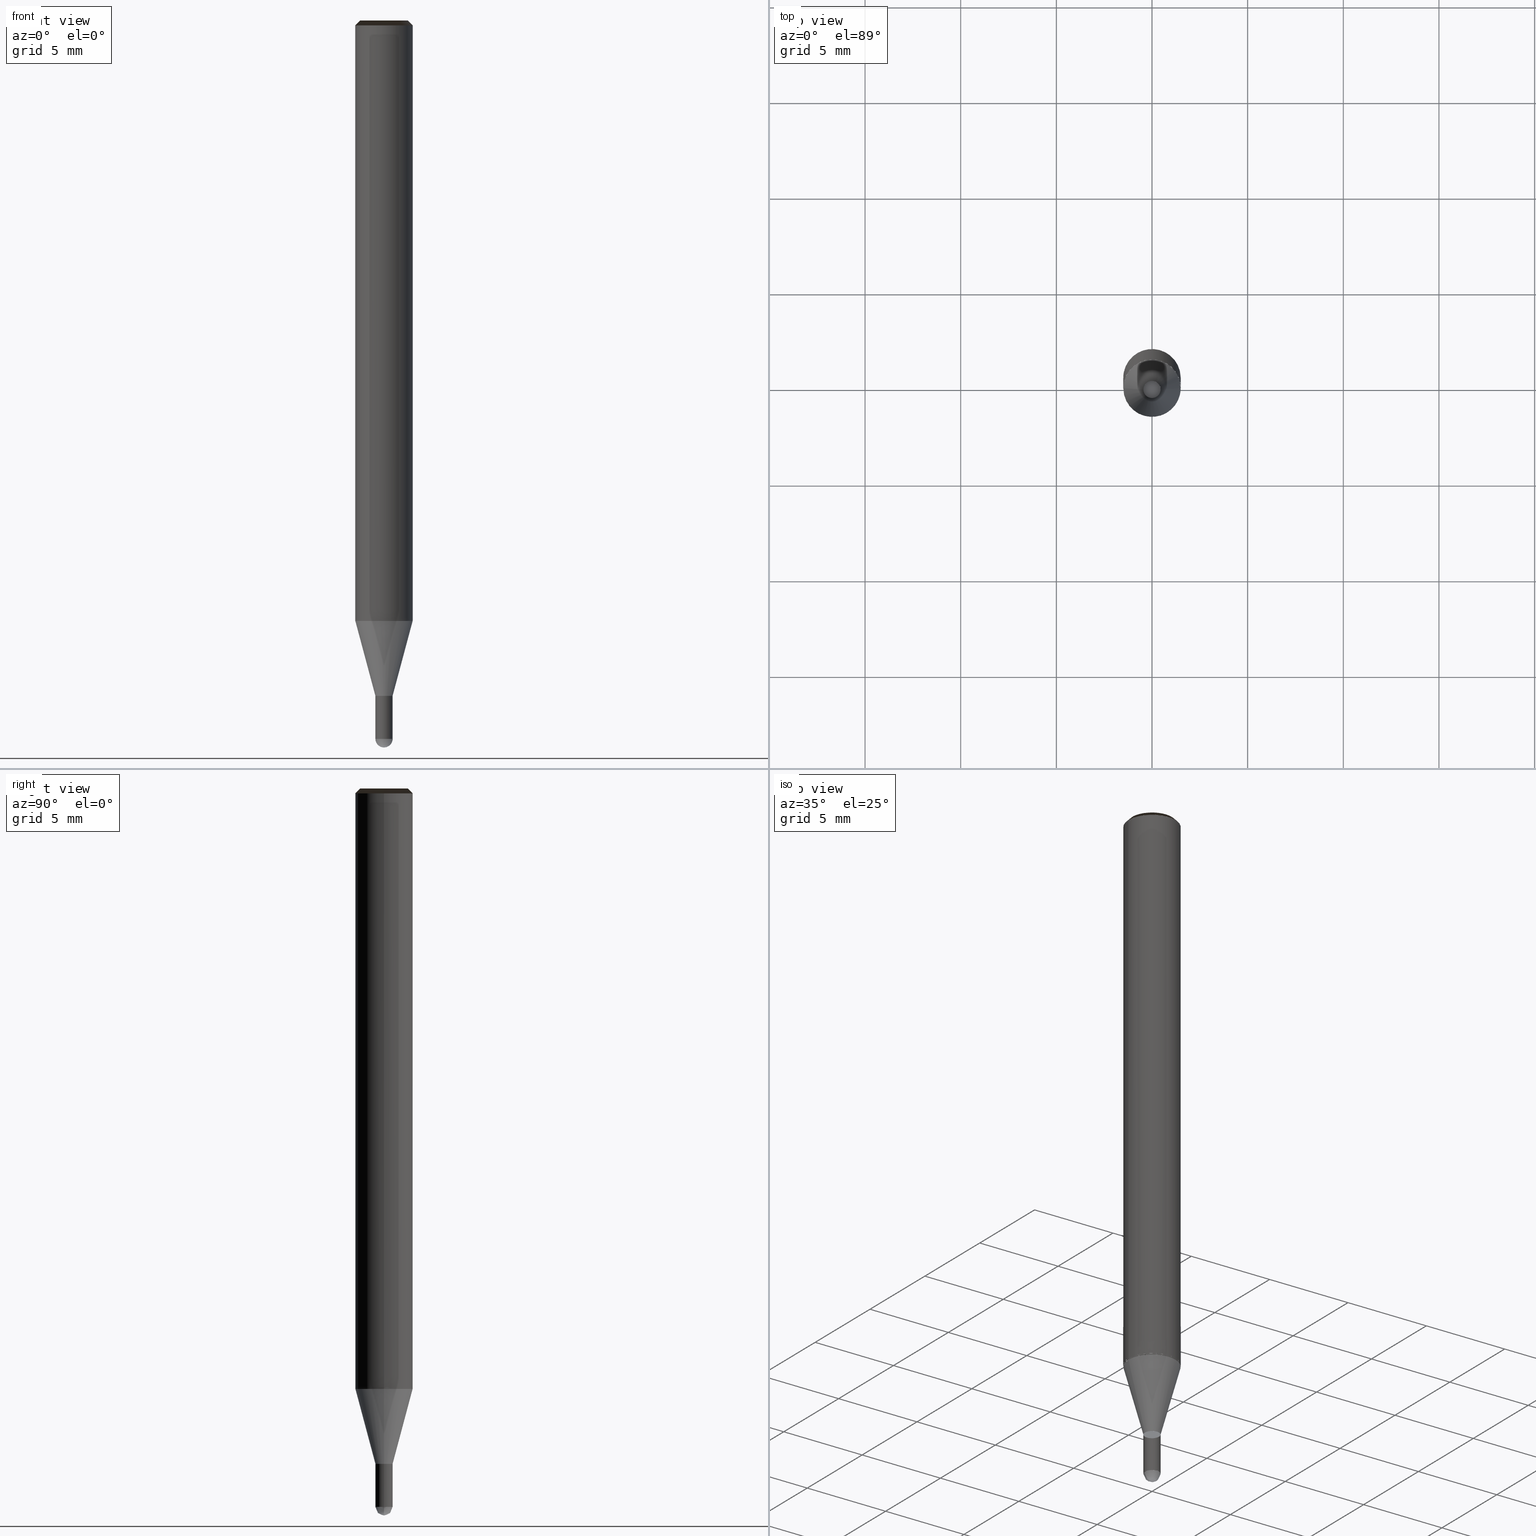
[diagram: canonical four-view strip — front | top / right | iso, engineering-drawing reading convention]
A machine part, canonical four-view strip (front | top / right | iso — engineering-drawing reading convention). The complete STEP part file that produces these views, byte-faithful:
ISO-10303-21;
HEADER;
/* Generated by ISBE GmbH (www.isbe.de) */
/* OPTION: using custom schema-name function */

FILE_DESCRIPTION(
/* description */ (''),
/* implementation_level */ '2;1');

FILE_NAME(
/*name*/ 'Drawing No  1040090',
/*time_stamp*/'2021-9-30T9:37:50',
/*author*/ ('ISBE GmbH'),
/*organization*/ ('ISBE GmbH'),
/*preprocessor_version*/ 'STEP IO v1.0',
/*originating_system*/ '',
/*authorisation*/ '');

FILE_SCHEMA (('AUTOMOTIVE_DESIGN'));
ENDSEC;

DATA;
#10=SHAPE_DEFINITION_REPRESENTATION(#11,#57);
#11=PRODUCT_DEFINITION_SHAPE('Document','',#13);
#12=PRODUCT_DEFINITION_CONTEXT('3D Mechanical Parts',#17,'design');
#13=PRODUCT_DEFINITION('A','First version',#14,#12);
#14=PRODUCT_DEFINITION_FORMATION_WITH_SPECIFIED_SOURCE('A','First version',#19,.MADE.);
#15=PRODUCT_RELATED_PRODUCT_CATEGORY('tool','tool',(#19));
#16=APPLICATION_PROTOCOL_DEFINITION('Draft International Standard', 'automotive_design',1999,#17);
#17=APPLICATION_CONTEXT('data for automotive mechanical design processes');
#18=PRODUCT_CONTEXT('3D Mechanical Parts',#17,'mechanical');
#19=PRODUCT('Document','Document','ISBE converted to STEP',(#18));
#20=(
LENGTH_UNIT()
NAMED_UNIT(*)
SI_UNIT(.MILLI.,.METRE.)
);
#21=(
NAMED_UNIT(*)
PLANE_ANGLE_UNIT()
SI_UNIT($,.RADIAN.)
);
#22=DIMENSIONAL_EXPONENTS(0.,0.,0.,0.,0.,0.,0.);
#23=PLANE_ANGLE_MEASURE_WITH_UNIT(PLANE_ANGLE_MEASURE(0.01745329252),#21);
#24=(
CONVERSION_BASED_UNIT('DEGREES',#23)
NAMED_UNIT(#22)
PLANE_ANGLE_UNIT()
);
#25=(
NAMED_UNIT(*)
SI_UNIT($,.STERADIAN.)
SOLID_ANGLE_UNIT()
);
#26=UNCERTAINTY_MEASURE_WITH_UNIT(LENGTH_MEASURE(0.001),#20, 'DISTANCE_ACCURACY_VALUE', 'Maximum model space distance between geometric entities at asserted connectivities');
#27=(
GEOMETRIC_REPRESENTATION_CONTEXT(3)
GLOBAL_UNCERTAINTY_ASSIGNED_CONTEXT((#26))
GLOBAL_UNIT_ASSIGNED_CONTEXT((#25,#24,#20))
REPRESENTATION_CONTEXT('ID1','3D')
);
#28=CARTESIAN_POINT('',(0.0,0.0,0.0));
#29=DIRECTION('',(1.0,0.0,0.0));
#30=DIRECTION('',(0.0,0.0,1.0));
#31=AXIS2_PLACEMENT_3D('',#28,#30,#29);
#32=CARTESIAN_POINT('',(0.0,0.0,0.0));
#33=DIRECTION('',(1.0,0.0,0.0));
#34=DIRECTION('',(0.0,0.0,1.0));
#35=AXIS2_PLACEMENT_3D('',#32,#34,#33);
#36=CARTESIAN_POINT('',(0.0,0.0,0.0));
#37=DIRECTION('',(1.0,0.0,0.0));
#38=DIRECTION('',(0.0,0.0,1.0));
#39=AXIS2_PLACEMENT_3D('',#36,#38,#37);
#40=CARTESIAN_POINT('',(0.0,0.0,0.0));
#41=DIRECTION('',(0.0,0.0,1.0));
#42=DIRECTION('',(1.0,0.0,0.0));
#43=AXIS2_PLACEMENT_3D('MCS',#40,#42,#41);
#44=CARTESIAN_POINT('',(0.0,0.0,31.3));
#45=DIRECTION('',(0.0,0.0,1.0));
#46=DIRECTION('',(1.0,0.0,0.0));
#47=AXIS2_PLACEMENT_3D('PCS',#44,#46,#45);
#48=CARTESIAN_POINT('',(0.0,0.0,-6.7));
#49=DIRECTION('',(0.0,0.0,1.0));
#50=DIRECTION('',(1.0,0.0,0.0));
#51=AXIS2_PLACEMENT_3D('CIP',#48,#50,#49);
#52=CARTESIAN_POINT('',(0.0,-0.45,-6.7));
#53=DIRECTION('',(0.0,0.0,1.0));
#54=DIRECTION('',(1.0,0.0,0.0));
#55=AXIS2_PLACEMENT_3D('CRP',#52,#54,#53);
#57=SHAPE_REPRESENTATION('Document',(#31,#35,#39,#43,#47,#51,#55),#27);
#58=DIRECTION('',(1.0,0.0,0.0));
#59=DIRECTION('',(0.0,0.0,1.0));
#60=CARTESIAN_POINT('',(-0.014466058399,0.003966504051,-6.699741040595));
#61=CARTESIAN_POINT('',(-0.020960141479,-0.019797312181,-6.699075426738));
#62=CARTESIAN_POINT('',(-0.025099690076,-0.035173013984,-6.697920600827));
#63=CARTESIAN_POINT('',(-0.028937796765,-0.049739310768,-6.69630550622));
#64=CARTESIAN_POINT('',(-0.032587269003,-0.064001371189,-6.694231802537));
#65=CARTESIAN_POINT('',(-0.036060887833,-0.078097955719,-6.691701620646));
#66=CARTESIAN_POINT('',(-0.039347875164,-0.09207956801,-6.688717560482));
#67=CARTESIAN_POINT('',(-0.042429701181,-0.1059655683,-6.685282688368));
#68=CARTESIAN_POINT('',(-0.045285006025,-0.119761628283,-6.681400533866));
#69=CARTESIAN_POINT('',(-0.047891549203,-0.13346636393,-6.677075086155));
#70=CARTESIAN_POINT('',(-0.050227132891,-0.147074239202,-6.672310789922));
#71=CARTESIAN_POINT('',(-0.052270110927,-0.160576971594,-6.667112540806));
#72=CARTESIAN_POINT('',(-0.053999710037,-0.173964266954,-6.661485680357));
#73=CARTESIAN_POINT('',(-0.055396257707,-0.187224229719,-6.655435990556));
#74=CARTESIAN_POINT('',(-0.056441359682,-0.200343607534,-6.648969687868));
#75=CARTESIAN_POINT('',(-0.057118048007,-0.213307948868,-6.642093416856));
#76=CARTESIAN_POINT('',(-0.057410910214,-0.226101714946,-6.634814243352));
#77=CARTESIAN_POINT('',(-0.057306205201,-0.23870836884,-6.627139647201));
#78=CARTESIAN_POINT('',(-0.05679196861,-0.251110454862,-6.619077514569));
#79=CARTESIAN_POINT('',(-0.055858109092,-0.263289676027,-6.610636129841));
#80=CARTESIAN_POINT('',(-0.054496495915,-0.275226974277,-6.601824167111));
#81=CARTESIAN_POINT('',(-0.052701037946,-0.286902616278,-6.592650681266));
#82=CARTESIAN_POINT('',(-0.050467753649,-0.298296286381,-6.583125098684));
#83=CARTESIAN_POINT('',(-0.047794831633,-0.309387187582,-6.573257207544));
#84=CARTESIAN_POINT('',(-0.044682681106,-0.320154150744,-6.563057147772));
#85=CARTESIAN_POINT('',(-0.041133971597,-0.330575751914,-6.552535400618));
#86=CARTESIAN_POINT('',(-0.037153661262,-0.340630437317,-6.541702777889));
#87=CARTESIAN_POINT('',(-0.032749013121,-0.350296655283,-6.530570410836));
#88=CARTESIAN_POINT('',(-0.02792959862,-0.359552994241,-6.519149738721));
#89=CARTESIAN_POINT('',(-0.022707287974,-0.368378325683,-6.507452497055));
#90=CARTESIAN_POINT('',(-0.017096226834,-0.376751950916,-6.495490705545));
#91=CARTESIAN_POINT('',(-0.011112798926,-0.384653750257,-6.48327665574));
#92=CARTESIAN_POINT('',(-0.004775574412,-0.39206433328,-6.470822898402));
#93=CARTESIAN_POINT('',(0.001894756112,-0.398965188628,-6.458142230608));
#94=CARTESIAN_POINT('',(0.008875461994,-0.405338831859,-6.445247682603));
#95=CARTESIAN_POINT('',(0.016141867064,-0.411168949784,-6.432152504405));
#96=CARTESIAN_POINT('',(0.023667458046,-0.416440539726,-6.418870152196));
#97=CARTESIAN_POINT('',(0.031424006345,-0.421140042159,-6.40541427449));
#98=CARTESIAN_POINT('',(0.039381702593,-0.425255465238,-6.391798698111));
#99=CARTESIAN_POINT('',(0.047509303159,-0.428776499745,-6.378037413984));
#100=CARTESIAN_POINT('',(0.055774287718,-0.43169462311,-6.364144562759));
#101=CARTESIAN_POINT('',(0.064143026794,-0.43400319122,-6.35013442028));
#102=CARTESIAN_POINT('',(0.07258095809,-0.435697516867,-6.336021382916));
#103=CARTESIAN_POINT('',(0.081052770302,-0.436774933817,-6.321819952765));
#104=CARTESIAN_POINT('',(0.089522592993,-0.437234845623,-6.307544722758));
#105=CARTESIAN_POINT('',(0.097954191045,-0.437078758466,-6.293210361658));
#106=CARTESIAN_POINT('',(0.106311162111,-0.436310297506,-6.278831598991));
#107=CARTESIAN_POINT('',(0.114557135459,-0.43493520636,-6.264423209907));
#108=CARTESIAN_POINT('',(0.122655970578,-0.432961329545,-6.25));
#109=CARTESIAN_POINT('',(0.149567383508,-0.424416773691,-6.201086956522));
#110=CARTESIAN_POINT('',(0.175889956236,-0.414201307694,-6.152173913043));
#111=CARTESIAN_POINT('',(0.201520057954,-0.402355149392,-6.103260869565));
#112=CARTESIAN_POINT('',(0.22635678408,-0.388924936589,-6.054347826087));
#113=CARTESIAN_POINT('',(0.250302353518,-0.373963543442,-6.005434782609));
#114=CARTESIAN_POINT('',(0.273262493614,-0.357529872296,-5.95652173913));
#115=CARTESIAN_POINT('',(0.29514681131,-0.33968862179,-5.907608695652));
#116=CARTESIAN_POINT('',(0.315869149009,-0.320510032143,-5.858695652174));
#117=CARTESIAN_POINT('',(0.335347923782,-0.300069608616,-5.809782608696));
#118=CARTESIAN_POINT('',(0.35350644855,-0.278447824258,-5.760869565217));
#119=CARTESIAN_POINT('',(0.370273234,-0.255729803079,-5.711956521739));
#120=CARTESIAN_POINT('',(0.385582270038,-0.232004984931,-5.663043478261));
#121=CARTESIAN_POINT('',(0.399373285661,-0.207366773375,-5.614130434783));
#122=CARTESIAN_POINT('',(0.411591986251,-0.181912167967,-5.565217391304));
#123=CARTESIAN_POINT('',(0.422190267319,-0.155741382365,-5.516304347826));
#124=CARTESIAN_POINT('',(0.431126403901,-0.128957449801,-5.467391304348));
#125=CARTESIAN_POINT('',(0.438365214821,-0.101665817438,-5.41847826087));
#126=CARTESIAN_POINT('',(0.443878201198,-0.073973931229,-5.369565217391));
#127=CARTESIAN_POINT('',(0.447643658648,-0.045990812912,-5.320652173913));
#128=CARTESIAN_POINT('',(0.449646762731,-0.017826630789,-5.271739130435));
#129=CARTESIAN_POINT('',(0.449879627315,0.010407733994,-5.222826086957));
#130=CARTESIAN_POINT('',(0.448341335622,0.038601123986,-5.173913043478));
#131=CARTESIAN_POINT('',(0.445037943838,0.066642543053,-5.125));
#132=CARTESIAN_POINT('',(0.439982457271,0.094421593364,-5.076086956522));
#133=CARTESIAN_POINT('',(0.43319477915,0.121828910021,-5.027173913043));
#134=CARTESIAN_POINT('',(0.424701632265,0.148756591625,-4.978260869565));
#135=CARTESIAN_POINT('',(0.414536453759,0.17509862508,-4.929347826087));
#136=CARTESIAN_POINT('',(0.402739263494,0.20075130296,-4.880434782609));
#137=CARTESIAN_POINT('',(0.389356506488,0.225613631804,-4.83152173913));
#138=CARTESIAN_POINT('',(0.374440870065,0.249587729716,-4.782608695652));
#139=CARTESIAN_POINT('',(0.35805107643,0.27257921173,-4.733695652174));
#140=CARTESIAN_POINT('',(0.340251651478,0.294497561393,-4.684782608696));
#141=CARTESIAN_POINT('',(0.321112670761,0.315256487129,-4.635869565217));
#142=CARTESIAN_POINT('',(0.300709483603,0.334774261961,-4.586956521739));
#143=CARTESIAN_POINT('',(0.279122416453,0.352974045269,-4.538043478261));
#144=CARTESIAN_POINT('',(0.256436456644,0.369784185308,-4.489130434783));
#145=CARTESIAN_POINT('',(0.2327409178,0.385138501297,-4.440217391304));
#146=CARTESIAN_POINT('',(0.208129088215,0.398976543971,-4.391304347826));
#147=CARTESIAN_POINT('',(0.182697863576,0.411243833564,-4.342391304348));
#148=CARTESIAN_POINT('',(0.156547365496,0.421892074299,-4.29347826087));
#149=CARTESIAN_POINT('',(0.129780547333,0.43087934452,-4.244565217391));
#150=CARTESIAN_POINT('',(0.102502788871,0.43817026174,-4.195652173913));
#151=CARTESIAN_POINT('',(0.074821481445,0.44373612194,-4.146739130435));
#152=CARTESIAN_POINT('',(0.046845605142,0.447555012573,-4.097826086957));
#153=CARTESIAN_POINT('',(0.018685299755,0.449611898834,-4.048913043478));
#154=CARTESIAN_POINT('',(-0.009548568835,0.449898682853,-4.0));
#155=CARTESIAN_POINT('',(-0.003966504051,-0.014466058399,-6.699741040595));
#156=CARTESIAN_POINT('',(0.019797312181,-0.020960141479,-6.699075426738));
#157=CARTESIAN_POINT('',(0.035173013984,-0.025099690076,-6.697920600827));
#158=CARTESIAN_POINT('',(0.049739310768,-0.028937796765,-6.69630550622));
#159=CARTESIAN_POINT('',(0.064001371189,-0.032587269003,-6.694231802537));
#160=CARTESIAN_POINT('',(0.078097955719,-0.036060887833,-6.691701620646));
#161=CARTESIAN_POINT('',(0.09207956801,-0.039347875164,-6.688717560482));
#162=CARTESIAN_POINT('',(0.1059655683,-0.042429701181,-6.685282688368));
#163=CARTESIAN_POINT('',(0.119761628283,-0.045285006025,-6.681400533866));
#164=CARTESIAN_POINT('',(0.13346636393,-0.047891549203,-6.677075086155));
#165=CARTESIAN_POINT('',(0.147074239202,-0.050227132891,-6.672310789922));
#166=CARTESIAN_POINT('',(0.160576971594,-0.052270110927,-6.667112540806));
#167=CARTESIAN_POINT('',(0.173964266954,-0.053999710037,-6.661485680357));
#168=CARTESIAN_POINT('',(0.187224229719,-0.055396257707,-6.655435990556));
#169=CARTESIAN_POINT('',(0.200343607534,-0.056441359682,-6.648969687868));
#170=CARTESIAN_POINT('',(0.213307948868,-0.057118048007,-6.642093416856));
#171=CARTESIAN_POINT('',(0.226101714946,-0.057410910214,-6.634814243352));
#172=CARTESIAN_POINT('',(0.23870836884,-0.057306205201,-6.627139647201));
#173=CARTESIAN_POINT('',(0.251110454862,-0.05679196861,-6.619077514569));
#174=CARTESIAN_POINT('',(0.263289676027,-0.055858109092,-6.610636129841));
#175=CARTESIAN_POINT('',(0.275226974277,-0.054496495915,-6.601824167111));
#176=CARTESIAN_POINT('',(0.286902616278,-0.052701037946,-6.592650681266));
#177=CARTESIAN_POINT('',(0.298296286381,-0.050467753649,-6.583125098684));
#178=CARTESIAN_POINT('',(0.309387187582,-0.047794831633,-6.573257207544));
#179=CARTESIAN_POINT('',(0.320154150744,-0.044682681106,-6.563057147772));
#180=CARTESIAN_POINT('',(0.330575751914,-0.041133971597,-6.552535400618));
#181=CARTESIAN_POINT('',(0.340630437317,-0.037153661262,-6.541702777889));
#182=CARTESIAN_POINT('',(0.350296655283,-0.032749013121,-6.530570410836));
#183=CARTESIAN_POINT('',(0.359552994241,-0.02792959862,-6.519149738721));
#184=CARTESIAN_POINT('',(0.368378325683,-0.022707287974,-6.507452497055));
#185=CARTESIAN_POINT('',(0.376751950916,-0.017096226834,-6.495490705545));
#186=CARTESIAN_POINT('',(0.384653750257,-0.011112798926,-6.48327665574));
#187=CARTESIAN_POINT('',(0.39206433328,-0.004775574412,-6.470822898402));
#188=CARTESIAN_POINT('',(0.398965188628,0.001894756112,-6.458142230608));
#189=CARTESIAN_POINT('',(0.405338831859,0.008875461994,-6.445247682603));
#190=CARTESIAN_POINT('',(0.411168949784,0.016141867064,-6.432152504405));
#191=CARTESIAN_POINT('',(0.416440539726,0.023667458046,-6.418870152196));
#192=CARTESIAN_POINT('',(0.421140042159,0.031424006345,-6.40541427449));
#193=CARTESIAN_POINT('',(0.425255465238,0.039381702593,-6.391798698111));
#194=CARTESIAN_POINT('',(0.428776499745,0.047509303159,-6.378037413984));
#195=CARTESIAN_POINT('',(0.43169462311,0.055774287718,-6.364144562759));
#196=CARTESIAN_POINT('',(0.43400319122,0.064143026794,-6.35013442028));
#197=CARTESIAN_POINT('',(0.435697516867,0.07258095809,-6.336021382916));
#198=CARTESIAN_POINT('',(0.436774933817,0.081052770302,-6.321819952765));
#199=CARTESIAN_POINT('',(0.437234845623,0.089522592993,-6.307544722758));
#200=CARTESIAN_POINT('',(0.437078758466,0.097954191045,-6.293210361658));
#201=CARTESIAN_POINT('',(0.436310297506,0.106311162111,-6.278831598991));
#202=CARTESIAN_POINT('',(0.43493520636,0.114557135459,-6.264423209907));
#203=CARTESIAN_POINT('',(0.432961329545,0.122655970578,-6.25));
#204=CARTESIAN_POINT('',(0.424416773691,0.149567383508,-6.201086956522));
#205=CARTESIAN_POINT('',(0.414201307694,0.175889956236,-6.152173913043));
#206=CARTESIAN_POINT('',(0.402355149392,0.201520057954,-6.103260869565));
#207=CARTESIAN_POINT('',(0.388924936589,0.22635678408,-6.054347826087));
#208=CARTESIAN_POINT('',(0.373963543442,0.250302353518,-6.005434782609));
#209=CARTESIAN_POINT('',(0.357529872296,0.273262493614,-5.95652173913));
#210=CARTESIAN_POINT('',(0.33968862179,0.29514681131,-5.907608695652));
#211=CARTESIAN_POINT('',(0.320510032143,0.315869149009,-5.858695652174));
#212=CARTESIAN_POINT('',(0.300069608616,0.335347923782,-5.809782608696));
#213=CARTESIAN_POINT('',(0.278447824258,0.35350644855,-5.760869565217));
#214=CARTESIAN_POINT('',(0.255729803079,0.370273234,-5.711956521739));
#215=CARTESIAN_POINT('',(0.232004984931,0.385582270038,-5.663043478261));
#216=CARTESIAN_POINT('',(0.207366773375,0.399373285661,-5.614130434783));
#217=CARTESIAN_POINT('',(0.181912167967,0.411591986251,-5.565217391304));
#218=CARTESIAN_POINT('',(0.155741382365,0.422190267319,-5.516304347826));
#219=CARTESIAN_POINT('',(0.128957449801,0.431126403901,-5.467391304348));
#220=CARTESIAN_POINT('',(0.101665817438,0.438365214821,-5.41847826087));
#221=CARTESIAN_POINT('',(0.073973931229,0.443878201198,-5.369565217391));
#222=CARTESIAN_POINT('',(0.045990812912,0.447643658648,-5.320652173913));
#223=CARTESIAN_POINT('',(0.017826630789,0.449646762731,-5.271739130435));
#224=CARTESIAN_POINT('',(-0.010407733994,0.449879627315,-5.222826086957));
#225=CARTESIAN_POINT('',(-0.038601123986,0.448341335622,-5.173913043478));
#226=CARTESIAN_POINT('',(-0.066642543053,0.445037943838,-5.125));
#227=CARTESIAN_POINT('',(-0.094421593364,0.439982457271,-5.076086956522));
#228=CARTESIAN_POINT('',(-0.121828910021,0.43319477915,-5.027173913043));
#229=CARTESIAN_POINT('',(-0.148756591625,0.424701632265,-4.978260869565));
#230=CARTESIAN_POINT('',(-0.17509862508,0.414536453759,-4.929347826087));
#231=CARTESIAN_POINT('',(-0.20075130296,0.402739263494,-4.880434782609));
#232=CARTESIAN_POINT('',(-0.225613631804,0.389356506488,-4.83152173913));
#233=CARTESIAN_POINT('',(-0.249587729716,0.374440870065,-4.782608695652));
#234=CARTESIAN_POINT('',(-0.27257921173,0.35805107643,-4.733695652174));
#235=CARTESIAN_POINT('',(-0.294497561393,0.340251651478,-4.684782608696));
#236=CARTESIAN_POINT('',(-0.315256487129,0.321112670761,-4.635869565217));
#237=CARTESIAN_POINT('',(-0.334774261961,0.300709483603,-4.586956521739));
#238=CARTESIAN_POINT('',(-0.352974045269,0.279122416453,-4.538043478261));
#239=CARTESIAN_POINT('',(-0.369784185308,0.256436456644,-4.489130434783));
#240=CARTESIAN_POINT('',(-0.385138501297,0.2327409178,-4.440217391304));
#241=CARTESIAN_POINT('',(-0.398976543971,0.208129088215,-4.391304347826));
#242=CARTESIAN_POINT('',(-0.411243833564,0.182697863576,-4.342391304348));
#243=CARTESIAN_POINT('',(-0.421892074299,0.156547365496,-4.29347826087));
#244=CARTESIAN_POINT('',(-0.43087934452,0.129780547333,-4.244565217391));
#245=CARTESIAN_POINT('',(-0.43817026174,0.102502788871,-4.195652173913));
#246=CARTESIAN_POINT('',(-0.44373612194,0.074821481445,-4.146739130435));
#247=CARTESIAN_POINT('',(-0.447555012573,0.046845605142,-4.097826086957));
#248=CARTESIAN_POINT('',(-0.449611898834,0.018685299755,-4.048913043478));
#249=CARTESIAN_POINT('',(-0.449898682853,-0.009548568835,-4.0));
#250=CARTESIAN_POINT('',(0.014466058399,-0.003966504051,-6.699741040595));
#251=CARTESIAN_POINT('',(0.020960141479,0.019797312181,-6.699075426738));
#252=CARTESIAN_POINT('',(0.025099690076,0.035173013984,-6.697920600827));
#253=CARTESIAN_POINT('',(0.028937796765,0.049739310768,-6.69630550622));
#254=CARTESIAN_POINT('',(0.032587269003,0.064001371189,-6.694231802537));
#255=CARTESIAN_POINT('',(0.036060887833,0.078097955719,-6.691701620646));
#256=CARTESIAN_POINT('',(0.039347875164,0.09207956801,-6.688717560482));
#257=CARTESIAN_POINT('',(0.042429701181,0.1059655683,-6.685282688368));
#258=CARTESIAN_POINT('',(0.045285006025,0.119761628283,-6.681400533866));
#259=CARTESIAN_POINT('',(0.047891549203,0.13346636393,-6.677075086155));
#260=CARTESIAN_POINT('',(0.050227132891,0.147074239202,-6.672310789922));
#261=CARTESIAN_POINT('',(0.052270110927,0.160576971594,-6.667112540806));
#262=CARTESIAN_POINT('',(0.053999710037,0.173964266954,-6.661485680357));
#263=CARTESIAN_POINT('',(0.055396257707,0.187224229719,-6.655435990556));
#264=CARTESIAN_POINT('',(0.056441359682,0.200343607534,-6.648969687868));
#265=CARTESIAN_POINT('',(0.057118048007,0.213307948868,-6.642093416856));
#266=CARTESIAN_POINT('',(0.057410910214,0.226101714946,-6.634814243352));
#267=CARTESIAN_POINT('',(0.057306205201,0.23870836884,-6.627139647201));
#268=CARTESIAN_POINT('',(0.05679196861,0.251110454862,-6.619077514569));
#269=CARTESIAN_POINT('',(0.055858109092,0.263289676027,-6.610636129841));
#270=CARTESIAN_POINT('',(0.054496495915,0.275226974277,-6.601824167111));
#271=CARTESIAN_POINT('',(0.052701037946,0.286902616278,-6.592650681266));
#272=CARTESIAN_POINT('',(0.050467753649,0.298296286381,-6.583125098684));
#273=CARTESIAN_POINT('',(0.047794831633,0.309387187582,-6.573257207544));
#274=CARTESIAN_POINT('',(0.044682681106,0.320154150744,-6.563057147772));
#275=CARTESIAN_POINT('',(0.041133971597,0.330575751914,-6.552535400618));
#276=CARTESIAN_POINT('',(0.037153661262,0.340630437317,-6.541702777889));
#277=CARTESIAN_POINT('',(0.032749013121,0.350296655283,-6.530570410836));
#278=CARTESIAN_POINT('',(0.02792959862,0.359552994241,-6.519149738721));
#279=CARTESIAN_POINT('',(0.022707287974,0.368378325683,-6.507452497055));
#280=CARTESIAN_POINT('',(0.017096226834,0.376751950916,-6.495490705545));
#281=CARTESIAN_POINT('',(0.011112798926,0.384653750257,-6.48327665574));
#282=CARTESIAN_POINT('',(0.004775574412,0.39206433328,-6.470822898402));
#283=CARTESIAN_POINT('',(-0.001894756112,0.398965188628,-6.458142230608));
#284=CARTESIAN_POINT('',(-0.008875461994,0.405338831859,-6.445247682603));
#285=CARTESIAN_POINT('',(-0.016141867064,0.411168949784,-6.432152504405));
#286=CARTESIAN_POINT('',(-0.023667458046,0.416440539726,-6.418870152196));
#287=CARTESIAN_POINT('',(-0.031424006345,0.421140042159,-6.40541427449));
#288=CARTESIAN_POINT('',(-0.039381702593,0.425255465238,-6.391798698111));
#289=CARTESIAN_POINT('',(-0.047509303159,0.428776499745,-6.378037413984));
#290=CARTESIAN_POINT('',(-0.055774287718,0.43169462311,-6.364144562759));
#291=CARTESIAN_POINT('',(-0.064143026794,0.43400319122,-6.35013442028));
#292=CARTESIAN_POINT('',(-0.07258095809,0.435697516867,-6.336021382916));
#293=CARTESIAN_POINT('',(-0.081052770302,0.436774933817,-6.321819952765));
#294=CARTESIAN_POINT('',(-0.089522592993,0.437234845623,-6.307544722758));
#295=CARTESIAN_POINT('',(-0.097954191045,0.437078758466,-6.293210361658));
#296=CARTESIAN_POINT('',(-0.106311162111,0.436310297506,-6.278831598991));
#297=CARTESIAN_POINT('',(-0.114557135459,0.43493520636,-6.264423209907));
#298=CARTESIAN_POINT('',(-0.122655970578,0.432961329545,-6.25));
#299=CARTESIAN_POINT('',(-0.149567383508,0.424416773691,-6.201086956522));
#300=CARTESIAN_POINT('',(-0.175889956236,0.414201307694,-6.152173913043));
#301=CARTESIAN_POINT('',(-0.201520057954,0.402355149392,-6.103260869565));
#302=CARTESIAN_POINT('',(-0.22635678408,0.388924936589,-6.054347826087));
#303=CARTESIAN_POINT('',(-0.250302353518,0.373963543442,-6.005434782609));
#304=CARTESIAN_POINT('',(-0.273262493614,0.357529872296,-5.95652173913));
#305=CARTESIAN_POINT('',(-0.29514681131,0.33968862179,-5.907608695652));
#306=CARTESIAN_POINT('',(-0.315869149009,0.320510032143,-5.858695652174));
#307=CARTESIAN_POINT('',(-0.335347923782,0.300069608616,-5.809782608696));
#308=CARTESIAN_POINT('',(-0.35350644855,0.278447824258,-5.760869565217));
#309=CARTESIAN_POINT('',(-0.370273234,0.255729803079,-5.711956521739));
#310=CARTESIAN_POINT('',(-0.385582270038,0.232004984931,-5.663043478261));
#311=CARTESIAN_POINT('',(-0.399373285661,0.207366773375,-5.614130434783));
#312=CARTESIAN_POINT('',(-0.411591986251,0.181912167967,-5.565217391304));
#313=CARTESIAN_POINT('',(-0.422190267319,0.155741382365,-5.516304347826));
#314=CARTESIAN_POINT('',(-0.431126403901,0.128957449801,-5.467391304348));
#315=CARTESIAN_POINT('',(-0.438365214821,0.101665817438,-5.41847826087));
#316=CARTESIAN_POINT('',(-0.443878201198,0.073973931229,-5.369565217391));
#317=CARTESIAN_POINT('',(-0.447643658648,0.045990812912,-5.320652173913));
#318=CARTESIAN_POINT('',(-0.449646762731,0.017826630789,-5.271739130435));
#319=CARTESIAN_POINT('',(-0.449879627315,-0.010407733994,-5.222826086957));
#320=CARTESIAN_POINT('',(-0.448341335622,-0.038601123986,-5.173913043478));
#321=CARTESIAN_POINT('',(-0.445037943838,-0.066642543053,-5.125));
#322=CARTESIAN_POINT('',(-0.439982457271,-0.094421593364,-5.076086956522));
#323=CARTESIAN_POINT('',(-0.43319477915,-0.121828910021,-5.027173913043));
#324=CARTESIAN_POINT('',(-0.424701632265,-0.148756591625,-4.978260869565));
#325=CARTESIAN_POINT('',(-0.414536453759,-0.17509862508,-4.929347826087));
#326=CARTESIAN_POINT('',(-0.402739263494,-0.20075130296,-4.880434782609));
#327=CARTESIAN_POINT('',(-0.389356506488,-0.225613631804,-4.83152173913));
#328=CARTESIAN_POINT('',(-0.374440870065,-0.249587729716,-4.782608695652));
#329=CARTESIAN_POINT('',(-0.35805107643,-0.27257921173,-4.733695652174));
#330=CARTESIAN_POINT('',(-0.340251651478,-0.294497561393,-4.684782608696));
#331=CARTESIAN_POINT('',(-0.321112670761,-0.315256487129,-4.635869565217));
#332=CARTESIAN_POINT('',(-0.300709483603,-0.334774261961,-4.586956521739));
#333=CARTESIAN_POINT('',(-0.279122416453,-0.352974045269,-4.538043478261));
#334=CARTESIAN_POINT('',(-0.256436456644,-0.369784185308,-4.489130434783));
#335=CARTESIAN_POINT('',(-0.2327409178,-0.385138501297,-4.440217391304));
#336=CARTESIAN_POINT('',(-0.208129088215,-0.398976543971,-4.391304347826));
#337=CARTESIAN_POINT('',(-0.182697863576,-0.411243833564,-4.342391304348));
#338=CARTESIAN_POINT('',(-0.156547365496,-0.421892074299,-4.29347826087));
#339=CARTESIAN_POINT('',(-0.129780547333,-0.43087934452,-4.244565217391));
#340=CARTESIAN_POINT('',(-0.102502788871,-0.43817026174,-4.195652173913));
#341=CARTESIAN_POINT('',(-0.074821481445,-0.44373612194,-4.146739130435));
#342=CARTESIAN_POINT('',(-0.046845605142,-0.447555012573,-4.097826086957));
#343=CARTESIAN_POINT('',(-0.018685299755,-0.449611898834,-4.048913043478));
#344=CARTESIAN_POINT('',(0.009548568835,-0.449898682853,-4.0));
#345=CARTESIAN_POINT('',(0.003966504051,0.014466058399,-6.699741040595));
#346=CARTESIAN_POINT('',(-0.019797312181,0.020960141479,-6.699075426738));
#347=CARTESIAN_POINT('',(-0.035173013984,0.025099690076,-6.697920600827));
#348=CARTESIAN_POINT('',(-0.049739310768,0.028937796765,-6.69630550622));
#349=CARTESIAN_POINT('',(-0.064001371189,0.032587269003,-6.694231802537));
#350=CARTESIAN_POINT('',(-0.078097955719,0.036060887833,-6.691701620646));
#351=CARTESIAN_POINT('',(-0.09207956801,0.039347875164,-6.688717560482));
#352=CARTESIAN_POINT('',(-0.1059655683,0.042429701181,-6.685282688368));
#353=CARTESIAN_POINT('',(-0.119761628283,0.045285006025,-6.681400533866));
#354=CARTESIAN_POINT('',(-0.13346636393,0.047891549203,-6.677075086155));
#355=CARTESIAN_POINT('',(-0.147074239202,0.050227132891,-6.672310789922));
#356=CARTESIAN_POINT('',(-0.160576971594,0.052270110927,-6.667112540806));
#357=CARTESIAN_POINT('',(-0.173964266954,0.053999710037,-6.661485680357));
#358=CARTESIAN_POINT('',(-0.187224229719,0.055396257707,-6.655435990556));
#359=CARTESIAN_POINT('',(-0.200343607534,0.056441359682,-6.648969687868));
#360=CARTESIAN_POINT('',(-0.213307948868,0.057118048007,-6.642093416856));
#361=CARTESIAN_POINT('',(-0.226101714946,0.057410910214,-6.634814243352));
#362=CARTESIAN_POINT('',(-0.23870836884,0.057306205201,-6.627139647201));
#363=CARTESIAN_POINT('',(-0.251110454862,0.05679196861,-6.619077514569));
#364=CARTESIAN_POINT('',(-0.263289676027,0.055858109092,-6.610636129841));
#365=CARTESIAN_POINT('',(-0.275226974277,0.054496495915,-6.601824167111));
#366=CARTESIAN_POINT('',(-0.286902616278,0.052701037946,-6.592650681266));
#367=CARTESIAN_POINT('',(-0.298296286381,0.050467753649,-6.583125098684));
#368=CARTESIAN_POINT('',(-0.309387187582,0.047794831633,-6.573257207544));
#369=CARTESIAN_POINT('',(-0.320154150744,0.044682681106,-6.563057147772));
#370=CARTESIAN_POINT('',(-0.330575751914,0.041133971597,-6.552535400618));
#371=CARTESIAN_POINT('',(-0.340630437317,0.037153661262,-6.541702777889));
#372=CARTESIAN_POINT('',(-0.350296655283,0.032749013121,-6.530570410836));
#373=CARTESIAN_POINT('',(-0.359552994241,0.02792959862,-6.519149738721));
#374=CARTESIAN_POINT('',(-0.368378325683,0.022707287974,-6.507452497055));
#375=CARTESIAN_POINT('',(-0.376751950916,0.017096226834,-6.495490705545));
#376=CARTESIAN_POINT('',(-0.384653750257,0.011112798926,-6.48327665574));
#377=CARTESIAN_POINT('',(-0.39206433328,0.004775574412,-6.470822898402));
#378=CARTESIAN_POINT('',(-0.398965188628,-0.001894756112,-6.458142230608));
#379=CARTESIAN_POINT('',(-0.405338831859,-0.008875461994,-6.445247682603));
#380=CARTESIAN_POINT('',(-0.411168949784,-0.016141867064,-6.432152504405));
#381=CARTESIAN_POINT('',(-0.416440539726,-0.023667458046,-6.418870152196));
#382=CARTESIAN_POINT('',(-0.421140042159,-0.031424006345,-6.40541427449));
#383=CARTESIAN_POINT('',(-0.425255465238,-0.039381702593,-6.391798698111));
#384=CARTESIAN_POINT('',(-0.428776499745,-0.047509303159,-6.378037413984));
#385=CARTESIAN_POINT('',(-0.43169462311,-0.055774287718,-6.364144562759));
#386=CARTESIAN_POINT('',(-0.43400319122,-0.064143026794,-6.35013442028));
#387=CARTESIAN_POINT('',(-0.435697516867,-0.07258095809,-6.336021382916));
#388=CARTESIAN_POINT('',(-0.436774933817,-0.081052770302,-6.321819952765));
#389=CARTESIAN_POINT('',(-0.437234845623,-0.089522592993,-6.307544722758));
#390=CARTESIAN_POINT('',(-0.437078758466,-0.097954191045,-6.293210361658));
#391=CARTESIAN_POINT('',(-0.436310297506,-0.106311162111,-6.278831598991));
#392=CARTESIAN_POINT('',(-0.43493520636,-0.114557135459,-6.264423209907));
#393=CARTESIAN_POINT('',(-0.432961329545,-0.122655970578,-6.25));
#394=CARTESIAN_POINT('',(-0.424416773691,-0.149567383508,-6.201086956522));
#395=CARTESIAN_POINT('',(-0.414201307694,-0.175889956236,-6.152173913043));
#396=CARTESIAN_POINT('',(-0.402355149392,-0.201520057954,-6.103260869565));
#397=CARTESIAN_POINT('',(-0.388924936589,-0.22635678408,-6.054347826087));
#398=CARTESIAN_POINT('',(-0.373963543442,-0.250302353518,-6.005434782609));
#399=CARTESIAN_POINT('',(-0.357529872296,-0.273262493614,-5.95652173913));
#400=CARTESIAN_POINT('',(-0.33968862179,-0.29514681131,-5.907608695652));
#401=CARTESIAN_POINT('',(-0.320510032143,-0.315869149009,-5.858695652174));
#402=CARTESIAN_POINT('',(-0.300069608616,-0.335347923782,-5.809782608696));
#403=CARTESIAN_POINT('',(-0.278447824258,-0.35350644855,-5.760869565217));
#404=CARTESIAN_POINT('',(-0.255729803079,-0.370273234,-5.711956521739));
#405=CARTESIAN_POINT('',(-0.232004984931,-0.385582270038,-5.663043478261));
#406=CARTESIAN_POINT('',(-0.207366773375,-0.399373285661,-5.614130434783));
#407=CARTESIAN_POINT('',(-0.181912167967,-0.411591986251,-5.565217391304));
#408=CARTESIAN_POINT('',(-0.155741382365,-0.422190267319,-5.516304347826));
#409=CARTESIAN_POINT('',(-0.128957449801,-0.431126403901,-5.467391304348));
#410=CARTESIAN_POINT('',(-0.101665817438,-0.438365214821,-5.41847826087));
#411=CARTESIAN_POINT('',(-0.073973931229,-0.443878201198,-5.369565217391));
#412=CARTESIAN_POINT('',(-0.045990812912,-0.447643658648,-5.320652173913));
#413=CARTESIAN_POINT('',(-0.017826630789,-0.449646762731,-5.271739130435));
#414=CARTESIAN_POINT('',(0.010407733994,-0.449879627315,-5.222826086957));
#415=CARTESIAN_POINT('',(0.038601123986,-0.448341335622,-5.173913043478));
#416=CARTESIAN_POINT('',(0.066642543053,-0.445037943838,-5.125));
#417=CARTESIAN_POINT('',(0.094421593364,-0.439982457271,-5.076086956522));
#418=CARTESIAN_POINT('',(0.121828910021,-0.43319477915,-5.027173913043));
#419=CARTESIAN_POINT('',(0.148756591625,-0.424701632265,-4.978260869565));
#420=CARTESIAN_POINT('',(0.17509862508,-0.414536453759,-4.929347826087));
#421=CARTESIAN_POINT('',(0.20075130296,-0.402739263494,-4.880434782609));
#422=CARTESIAN_POINT('',(0.225613631804,-0.389356506488,-4.83152173913));
#423=CARTESIAN_POINT('',(0.249587729716,-0.374440870065,-4.782608695652));
#424=CARTESIAN_POINT('',(0.27257921173,-0.35805107643,-4.733695652174));
#425=CARTESIAN_POINT('',(0.294497561393,-0.340251651478,-4.684782608696));
#426=CARTESIAN_POINT('',(0.315256487129,-0.321112670761,-4.635869565217));
#427=CARTESIAN_POINT('',(0.334774261961,-0.300709483603,-4.586956521739));
#428=CARTESIAN_POINT('',(0.352974045269,-0.279122416453,-4.538043478261));
#429=CARTESIAN_POINT('',(0.369784185308,-0.256436456644,-4.489130434783));
#430=CARTESIAN_POINT('',(0.385138501297,-0.2327409178,-4.440217391304));
#431=CARTESIAN_POINT('',(0.398976543971,-0.208129088215,-4.391304347826));
#432=CARTESIAN_POINT('',(0.411243833564,-0.182697863576,-4.342391304348));
#433=CARTESIAN_POINT('',(0.421892074299,-0.156547365496,-4.29347826087));
#434=CARTESIAN_POINT('',(0.43087934452,-0.129780547333,-4.244565217391));
#435=CARTESIAN_POINT('',(0.43817026174,-0.102502788871,-4.195652173913));
#436=CARTESIAN_POINT('',(0.44373612194,-0.074821481445,-4.146739130435));
#437=CARTESIAN_POINT('',(0.447555012573,-0.046845605142,-4.097826086957));
#438=CARTESIAN_POINT('',(0.449611898834,-0.018685299755,-4.048913043478));
#439=CARTESIAN_POINT('',(0.449898682853,0.009548568835,-4.0));
#440=CARTESIAN_POINT('',(0.0,0.0,-6.7));
#441=CARTESIAN_POINT('',(0.45,0.0,-6.7));
#442=CARTESIAN_POINT('',(0.45,0.45,-6.7));
#443=CARTESIAN_POINT('',(0.0,0.45,-6.7));
#444=CARTESIAN_POINT('',(-0.45,0.45,-6.7));
#445=CARTESIAN_POINT('',(-0.45,0.0,-6.7));
#446=CARTESIAN_POINT('',(0.45,0.0,-6.25));
#447=CARTESIAN_POINT('',(0.45,0.45,-6.25));
#448=CARTESIAN_POINT('',(0.0,0.45,-6.25));
#449=CARTESIAN_POINT('',(-0.45,0.45,-6.25));
#450=CARTESIAN_POINT('',(-0.45,0.0,-6.25));
#451=CARTESIAN_POINT('',(0.45,0.0,-4.0));
#452=CARTESIAN_POINT('',(0.45,0.45,-4.0));
#453=CARTESIAN_POINT('',(0.0,0.45,-4.0));
#454=CARTESIAN_POINT('',(-0.45,0.45,-4.0));
#455=CARTESIAN_POINT('',(-0.45,0.0,-4.0));
#456=CARTESIAN_POINT('',(0.0,0.0,-4.0));
#457=CARTESIAN_POINT('',(-0.45,-0.45,-6.7));
#458=CARTESIAN_POINT('',(0.0,-0.45,-6.7));
#459=CARTESIAN_POINT('',(0.45,-0.45,-6.7));
#460=CARTESIAN_POINT('',(-0.45,-0.45,-6.25));
#461=CARTESIAN_POINT('',(0.0,-0.45,-6.25));
#462=CARTESIAN_POINT('',(0.45,-0.45,-6.25));
#463=CARTESIAN_POINT('',(-0.45,-0.45,-4.0));
#464=CARTESIAN_POINT('',(0.0,-0.45,-4.0));
#465=CARTESIAN_POINT('',(0.45,-0.45,-4.0));
#466=CARTESIAN_POINT('',(1.5,0.0,-0.081346652053));
#467=CARTESIAN_POINT('',(1.5,1.5,-0.081346652053));
#468=CARTESIAN_POINT('',(0.0,1.5,-0.081346652053));
#469=CARTESIAN_POINT('',(-1.5,1.5,-0.081346652053));
#470=CARTESIAN_POINT('',(-1.5,0.0,-0.081346652053));
#471=CARTESIAN_POINT('',(1.5,0.0,0.0));
#472=CARTESIAN_POINT('',(1.5,1.5,0.0));
#473=CARTESIAN_POINT('',(0.0,1.5,0.0));
#474=CARTESIAN_POINT('',(-1.5,1.5,0.0));
#475=CARTESIAN_POINT('',(-1.5,0.0,0.0));
#476=CARTESIAN_POINT('',(1.5,0.0,31.05));
#477=CARTESIAN_POINT('',(1.5,1.5,31.05));
#478=CARTESIAN_POINT('',(0.0,1.5,31.05));
#479=CARTESIAN_POINT('',(-1.5,1.5,31.05));
#480=CARTESIAN_POINT('',(-1.5,0.0,31.05));
#481=CARTESIAN_POINT('',(1.25,0.0,31.3));
#482=CARTESIAN_POINT('',(1.25,1.25,31.3));
#483=CARTESIAN_POINT('',(0.0,1.25,31.3));
#484=CARTESIAN_POINT('',(-1.25,1.25,31.3));
#485=CARTESIAN_POINT('',(-1.25,0.0,31.3));
#486=CARTESIAN_POINT('',(0.0,0.0,31.3));
#487=CARTESIAN_POINT('',(-1.5,-1.5,-0.081346652053));
#488=CARTESIAN_POINT('',(0.0,-1.5,-0.081346652053));
#489=CARTESIAN_POINT('',(1.5,-1.5,-0.081346652053));
#490=CARTESIAN_POINT('',(-1.5,-1.5,0.0));
#491=CARTESIAN_POINT('',(0.0,-1.5,0.0));
#492=CARTESIAN_POINT('',(1.5,-1.5,0.0));
#493=CARTESIAN_POINT('',(-1.5,-1.5,31.05));
#494=CARTESIAN_POINT('',(0.0,-1.5,31.05));
#495=CARTESIAN_POINT('',(1.5,-1.5,31.05));
#496=CARTESIAN_POINT('',(-1.25,-1.25,31.3));
#497=CARTESIAN_POINT('',(0.0,-1.25,31.3));
#498=CARTESIAN_POINT('',(1.25,-1.25,31.3));
#499=(
BOUNDED_CURVE()
B_SPLINE_CURVE(1,(#60,#61,#62,#63,#64,#65,#66,#67,#68,#69,#70,#71,#72,#73,#74,#75,#76,#77,#78,#79,#80,#81,#82,#83,#84,#85,#86,#87,#88,#89,#90,#91,#92,#93,#94,#95,#96,#97,#98,#99,#100,#101,#102,#103,#104,#105,#106,#107,#108,#109,#110,#111,#112,#113,#114,#115,#116,#117,#118,#119,#120,#121,#122,#123,#124,#125,#126,#127,#128,#129,#130,#131,#132,#133,#134,#135,#136,#137,#138,#139,#140,#141,#142,#143,#144,#145,#146,#147,#148,#149,#150,#151,#152,#153,#154),.UNSPECIFIED.,.F.,.F.)
B_SPLINE_CURVE_WITH_KNOTS((2,1,1,1,1,1,1,1,1,1,1,1,1,1,1,1,1,1,1,1,1,1,1,1,1,1,1,1,1,1,1,1,1,1,1,1,1,1,1,1,1,1,1,1,1,1,1,1,1,1,1,1,1,1,1,1,1,1,1,1,1,1,1,1,1,1,1,1,1,1,1,1,1,1,1,1,1,1,1,1,1,1,1,1,1,1,1,1,1,1,1,1,1,1,2),
(0.0,0.00735583318,0.012121097493,0.016643036715,0.021080539425,0.025479287926,0.029857866422,0.034225470384,0.038587340298,0.042946842146,0.047306388899,0.051667892933,0.056033005017,0.060403246716,0.064780085189,0.069164974601,0.073559376944,0.077964769422,0.082382642669,0.086814492497,0.091261807035,0.09572605057,0.100208645162,0.104710950883,0.109234245405,0.113779703601,0.118348377703,0.122941178506,0.127558858065,0.13220199421,0.136870977188,0.141565998642,0.146287043094,0.151033882022,0.155806070592,0.160602947024,0.16542363456,0.170267045948,0.175131890328,0.180016682393,0.184919753661,0.189839265697,0.194773225105,0.199719500104,0.204675838498,0.209639886852,0.214609210675,0.219581315419,0.224553668109,0.241411197063,0.258268726017,0.275126254971,0.291983783925,0.30884131288,0.325698841834,0.342556370788,0.359413899742,0.376271428696,0.39312895765,0.409986486604,0.426844015559,0.443701544513,0.460559073467,0.477416602421,0.494274131375,0.511131660329,0.527989189284,0.544846718238,0.561704247192,0.578561776146,0.5954193051,0.612276834054,0.629134363009,0.645991891963,0.662849420917,0.679706949871,0.696564478825,0.713422007779,0.730279536733,0.747137065688,0.763994594642,0.780852123596,0.79770965255,0.814567181504,0.831424710458,0.848282239413,0.865139768367,0.881997297321,0.898854826275,0.915712355229,0.932569884183,0.949427413138,0.966284942092,0.983142471046,1.0),.UNSPECIFIED.)
CURVE()
GEOMETRIC_REPRESENTATION_ITEM()
RATIONAL_B_SPLINE_CURVE((1.0,1.0,1.0,1.0,1.0,1.0,1.0,1.0,1.0,1.0,1.0,1.0,1.0,1.0,1.0,1.0,1.0,1.0,1.0,1.0,1.0,1.0,1.0,1.0,1.0,1.0,1.0,1.0,1.0,1.0,1.0,1.0,1.0,1.0,1.0,1.0,1.0,1.0,1.0,1.0,1.0,1.0,1.0,1.0,1.0,1.0,1.0,1.0,1.0,1.0,1.0,1.0,1.0,1.0,1.0,1.0,1.0,1.0,1.0,1.0,1.0,1.0,1.0,1.0,1.0,1.0,1.0,1.0,1.0,1.0,1.0,1.0,1.0,1.0,1.0,1.0,1.0,1.0,1.0,1.0,1.0,1.0,1.0,1.0,1.0,1.0,1.0,1.0,1.0,1.0,1.0,1.0,1.0,1.0,1.0))
REPRESENTATION_ITEM('')
);
#500=(
BOUNDED_CURVE()
B_SPLINE_CURVE(1,(#155,#156,#157,#158,#159,#160,#161,#162,#163,#164,#165,#166,#167,#168,#169,#170,#171,#172,#173,#174,#175,#176,#177,#178,#179,#180,#181,#182,#183,#184,#185,#186,#187,#188,#189,#190,#191,#192,#193,#194,#195,#196,#197,#198,#199,#200,#201,#202,#203,#204,#205,#206,#207,#208,#209,#210,#211,#212,#213,#214,#215,#216,#217,#218,#219,#220,#221,#222,#223,#224,#225,#226,#227,#228,#229,#230,#231,#232,#233,#234,#235,#236,#237,#238,#239,#240,#241,#242,#243,#244,#245,#246,#247,#248,#249),.UNSPECIFIED.,.F.,.F.)
B_SPLINE_CURVE_WITH_KNOTS((2,1,1,1,1,1,1,1,1,1,1,1,1,1,1,1,1,1,1,1,1,1,1,1,1,1,1,1,1,1,1,1,1,1,1,1,1,1,1,1,1,1,1,1,1,1,1,1,1,1,1,1,1,1,1,1,1,1,1,1,1,1,1,1,1,1,1,1,1,1,1,1,1,1,1,1,1,1,1,1,1,1,1,1,1,1,1,1,1,1,1,1,1,1,2),
(0.0,0.00735583318,0.012121097493,0.016643036715,0.021080539425,0.025479287926,0.029857866422,0.034225470384,0.038587340298,0.042946842146,0.047306388899,0.051667892933,0.056033005017,0.060403246716,0.064780085189,0.069164974601,0.073559376944,0.077964769422,0.082382642669,0.086814492497,0.091261807035,0.09572605057,0.100208645162,0.104710950883,0.109234245405,0.113779703601,0.118348377703,0.122941178506,0.127558858065,0.13220199421,0.136870977188,0.141565998642,0.146287043094,0.151033882022,0.155806070592,0.160602947024,0.16542363456,0.170267045948,0.175131890328,0.180016682393,0.184919753661,0.189839265697,0.194773225105,0.199719500104,0.204675838498,0.209639886852,0.214609210675,0.219581315419,0.224553668109,0.241411197063,0.258268726017,0.275126254971,0.291983783925,0.30884131288,0.325698841834,0.342556370788,0.359413899742,0.376271428696,0.39312895765,0.409986486604,0.426844015559,0.443701544513,0.460559073467,0.477416602421,0.494274131375,0.511131660329,0.527989189284,0.544846718238,0.561704247192,0.578561776146,0.5954193051,0.612276834054,0.629134363009,0.645991891963,0.662849420917,0.679706949871,0.696564478825,0.713422007779,0.730279536733,0.747137065688,0.763994594642,0.780852123596,0.79770965255,0.814567181504,0.831424710458,0.848282239413,0.865139768367,0.881997297321,0.898854826275,0.915712355229,0.932569884183,0.949427413138,0.966284942092,0.983142471046,1.0),.UNSPECIFIED.)
CURVE()
GEOMETRIC_REPRESENTATION_ITEM()
RATIONAL_B_SPLINE_CURVE((1.0,1.0,1.0,1.0,1.0,1.0,1.0,1.0,1.0,1.0,1.0,1.0,1.0,1.0,1.0,1.0,1.0,1.0,1.0,1.0,1.0,1.0,1.0,1.0,1.0,1.0,1.0,1.0,1.0,1.0,1.0,1.0,1.0,1.0,1.0,1.0,1.0,1.0,1.0,1.0,1.0,1.0,1.0,1.0,1.0,1.0,1.0,1.0,1.0,1.0,1.0,1.0,1.0,1.0,1.0,1.0,1.0,1.0,1.0,1.0,1.0,1.0,1.0,1.0,1.0,1.0,1.0,1.0,1.0,1.0,1.0,1.0,1.0,1.0,1.0,1.0,1.0,1.0,1.0,1.0,1.0,1.0,1.0,1.0,1.0,1.0,1.0,1.0,1.0,1.0,1.0,1.0,1.0,1.0,1.0))
REPRESENTATION_ITEM('')
);
#501=(
BOUNDED_CURVE()
B_SPLINE_CURVE(1,(#250,#251,#252,#253,#254,#255,#256,#257,#258,#259,#260,#261,#262,#263,#264,#265,#266,#267,#268,#269,#270,#271,#272,#273,#274,#275,#276,#277,#278,#279,#280,#281,#282,#283,#284,#285,#286,#287,#288,#289,#290,#291,#292,#293,#294,#295,#296,#297,#298,#299,#300,#301,#302,#303,#304,#305,#306,#307,#308,#309,#310,#311,#312,#313,#314,#315,#316,#317,#318,#319,#320,#321,#322,#323,#324,#325,#326,#327,#328,#329,#330,#331,#332,#333,#334,#335,#336,#337,#338,#339,#340,#341,#342,#343,#344),.UNSPECIFIED.,.F.,.F.)
B_SPLINE_CURVE_WITH_KNOTS((2,1,1,1,1,1,1,1,1,1,1,1,1,1,1,1,1,1,1,1,1,1,1,1,1,1,1,1,1,1,1,1,1,1,1,1,1,1,1,1,1,1,1,1,1,1,1,1,1,1,1,1,1,1,1,1,1,1,1,1,1,1,1,1,1,1,1,1,1,1,1,1,1,1,1,1,1,1,1,1,1,1,1,1,1,1,1,1,1,1,1,1,1,1,2),
(0.0,0.00735583318,0.012121097493,0.016643036715,0.021080539425,0.025479287926,0.029857866422,0.034225470384,0.038587340298,0.042946842146,0.047306388899,0.051667892933,0.056033005017,0.060403246716,0.064780085189,0.069164974601,0.073559376944,0.077964769422,0.082382642669,0.086814492497,0.091261807035,0.09572605057,0.100208645162,0.104710950883,0.109234245405,0.113779703601,0.118348377703,0.122941178506,0.127558858065,0.13220199421,0.136870977188,0.141565998642,0.146287043094,0.151033882022,0.155806070592,0.160602947024,0.16542363456,0.170267045948,0.175131890328,0.180016682393,0.184919753661,0.189839265697,0.194773225105,0.199719500104,0.204675838498,0.209639886852,0.214609210675,0.219581315419,0.224553668109,0.241411197063,0.258268726017,0.275126254971,0.291983783925,0.30884131288,0.325698841834,0.342556370788,0.359413899742,0.376271428696,0.39312895765,0.409986486604,0.426844015559,0.443701544513,0.460559073467,0.477416602421,0.494274131375,0.511131660329,0.527989189284,0.544846718238,0.561704247192,0.578561776146,0.5954193051,0.612276834054,0.629134363009,0.645991891963,0.662849420917,0.679706949871,0.696564478825,0.713422007779,0.730279536733,0.747137065688,0.763994594642,0.780852123596,0.79770965255,0.814567181504,0.831424710458,0.848282239413,0.865139768367,0.881997297321,0.898854826275,0.915712355229,0.932569884183,0.949427413138,0.966284942092,0.983142471046,1.0),.UNSPECIFIED.)
CURVE()
GEOMETRIC_REPRESENTATION_ITEM()
RATIONAL_B_SPLINE_CURVE((1.0,1.0,1.0,1.0,1.0,1.0,1.0,1.0,1.0,1.0,1.0,1.0,1.0,1.0,1.0,1.0,1.0,1.0,1.0,1.0,1.0,1.0,1.0,1.0,1.0,1.0,1.0,1.0,1.0,1.0,1.0,1.0,1.0,1.0,1.0,1.0,1.0,1.0,1.0,1.0,1.0,1.0,1.0,1.0,1.0,1.0,1.0,1.0,1.0,1.0,1.0,1.0,1.0,1.0,1.0,1.0,1.0,1.0,1.0,1.0,1.0,1.0,1.0,1.0,1.0,1.0,1.0,1.0,1.0,1.0,1.0,1.0,1.0,1.0,1.0,1.0,1.0,1.0,1.0,1.0,1.0,1.0,1.0,1.0,1.0,1.0,1.0,1.0,1.0,1.0,1.0,1.0,1.0,1.0,1.0))
REPRESENTATION_ITEM('')
);
#502=(
BOUNDED_CURVE()
B_SPLINE_CURVE(1,(#345,#346,#347,#348,#349,#350,#351,#352,#353,#354,#355,#356,#357,#358,#359,#360,#361,#362,#363,#364,#365,#366,#367,#368,#369,#370,#371,#372,#373,#374,#375,#376,#377,#378,#379,#380,#381,#382,#383,#384,#385,#386,#387,#388,#389,#390,#391,#392,#393,#394,#395,#396,#397,#398,#399,#400,#401,#402,#403,#404,#405,#406,#407,#408,#409,#410,#411,#412,#413,#414,#415,#416,#417,#418,#419,#420,#421,#422,#423,#424,#425,#426,#427,#428,#429,#430,#431,#432,#433,#434,#435,#436,#437,#438,#439),.UNSPECIFIED.,.F.,.F.)
B_SPLINE_CURVE_WITH_KNOTS((2,1,1,1,1,1,1,1,1,1,1,1,1,1,1,1,1,1,1,1,1,1,1,1,1,1,1,1,1,1,1,1,1,1,1,1,1,1,1,1,1,1,1,1,1,1,1,1,1,1,1,1,1,1,1,1,1,1,1,1,1,1,1,1,1,1,1,1,1,1,1,1,1,1,1,1,1,1,1,1,1,1,1,1,1,1,1,1,1,1,1,1,1,1,2),
(0.0,0.00735583318,0.012121097493,0.016643036715,0.021080539425,0.025479287926,0.029857866422,0.034225470384,0.038587340298,0.042946842146,0.047306388899,0.051667892933,0.056033005017,0.060403246716,0.064780085189,0.069164974601,0.073559376944,0.077964769422,0.082382642669,0.086814492497,0.091261807035,0.09572605057,0.100208645162,0.104710950883,0.109234245405,0.113779703601,0.118348377703,0.122941178506,0.127558858065,0.13220199421,0.136870977188,0.141565998642,0.146287043094,0.151033882022,0.155806070592,0.160602947024,0.16542363456,0.170267045948,0.175131890328,0.180016682393,0.184919753661,0.189839265697,0.194773225105,0.199719500104,0.204675838498,0.209639886852,0.214609210675,0.219581315419,0.224553668109,0.241411197063,0.258268726017,0.275126254971,0.291983783925,0.30884131288,0.325698841834,0.342556370788,0.359413899742,0.376271428696,0.39312895765,0.409986486604,0.426844015559,0.443701544513,0.460559073467,0.477416602421,0.494274131375,0.511131660329,0.527989189284,0.544846718238,0.561704247192,0.578561776146,0.5954193051,0.612276834054,0.629134363009,0.645991891963,0.662849420917,0.679706949871,0.696564478825,0.713422007779,0.730279536733,0.747137065688,0.763994594642,0.780852123596,0.79770965255,0.814567181504,0.831424710458,0.848282239413,0.865139768367,0.881997297321,0.898854826275,0.915712355229,0.932569884183,0.949427413138,0.966284942092,0.983142471046,1.0),.UNSPECIFIED.)
CURVE()
GEOMETRIC_REPRESENTATION_ITEM()
RATIONAL_B_SPLINE_CURVE((1.0,1.0,1.0,1.0,1.0,1.0,1.0,1.0,1.0,1.0,1.0,1.0,1.0,1.0,1.0,1.0,1.0,1.0,1.0,1.0,1.0,1.0,1.0,1.0,1.0,1.0,1.0,1.0,1.0,1.0,1.0,1.0,1.0,1.0,1.0,1.0,1.0,1.0,1.0,1.0,1.0,1.0,1.0,1.0,1.0,1.0,1.0,1.0,1.0,1.0,1.0,1.0,1.0,1.0,1.0,1.0,1.0,1.0,1.0,1.0,1.0,1.0,1.0,1.0,1.0,1.0,1.0,1.0,1.0,1.0,1.0,1.0,1.0,1.0,1.0,1.0,1.0,1.0,1.0,1.0,1.0,1.0,1.0,1.0,1.0,1.0,1.0,1.0,1.0,1.0,1.0,1.0,1.0,1.0,1.0))
REPRESENTATION_ITEM('')
);
#503=SHAPE_REPRESENTATION_RELATIONSHIP('','',#57,#504);
#504=GEOMETRICALLY_BOUNDED_WIREFRAME_SHAPE_REPRESENTATION('Curves',(#505,#31),#27);
#505=GEOMETRIC_CURVE_SET('CurveSet',(#499,#500,#501,#502));
#506=(
BOUNDED_SURFACE()
B_SPLINE_SURFACE(2,2,(
(#440,#440,#440,#440,#440),
(#441,#442,#443,#444,#445),
(#446,#447,#448,#449,#450)
), .UNSPECIFIED.,.F.,.F.,.F.)
B_SPLINE_SURFACE_WITH_KNOTS((3,3),(3,2,3),(
0.0,1.0),(
0.0,0.5,1.0), .UNSPECIFIED.)
GEOMETRIC_REPRESENTATION_ITEM()
RATIONAL_B_SPLINE_SURFACE(((1.0,0.707106781187,1.0,0.707106781187,1.0),
(0.707106781187,0.5,0.707106781187,0.5,0.707106781187),
(1.0,0.707106781187,1.0,0.707106781187,1.0)
))
REPRESENTATION_ITEM('')
SURFACE()
);
#507=(
BOUNDED_CURVE()
B_SPLINE_CURVE(2,(#450,#445,#440),.UNSPECIFIED.,.F.,.F.)
B_SPLINE_CURVE_WITH_KNOTS((3,3),
(0.0,1.0),.UNSPECIFIED.)
CURVE()
GEOMETRIC_REPRESENTATION_ITEM()
RATIONAL_B_SPLINE_CURVE((1.0,0.707106781187,1.0))
REPRESENTATION_ITEM('')
);
#508=(
BOUNDED_CURVE()
B_SPLINE_CURVE(2,(#440,#441,#446),.UNSPECIFIED.,.F.,.F.)
B_SPLINE_CURVE_WITH_KNOTS((3,3),
(0.0,1.0),.UNSPECIFIED.)
CURVE()
GEOMETRIC_REPRESENTATION_ITEM()
RATIONAL_B_SPLINE_CURVE((1.0,0.707106781187,1.0))
REPRESENTATION_ITEM('')
);
#509=(
BOUNDED_CURVE()
B_SPLINE_CURVE(2,(#446,#447,#448,#449,#450),.UNSPECIFIED.,.F.,.F.)
B_SPLINE_CURVE_WITH_KNOTS((3,2,3),
(0.0,0.5,1.0),.UNSPECIFIED.)
CURVE()
GEOMETRIC_REPRESENTATION_ITEM()
RATIONAL_B_SPLINE_CURVE((1.0,0.707106781187,1.0,0.707106781187,1.0))
REPRESENTATION_ITEM('')
);
#510=VERTEX_POINT('',#440);
#511=VERTEX_POINT('',#446);
#512=VERTEX_POINT('',#450);
#513=EDGE_CURVE('',#512,#510,#507,.T.);
#514=EDGE_CURVE('',#510,#511,#508,.T.);
#515=EDGE_CURVE('',#511,#512,#509,.T.);
#516=ORIENTED_EDGE('',*,*,#513,.T.);
#517=ORIENTED_EDGE('',*,*,#514,.T.);
#518=ORIENTED_EDGE('',*,*,#515,.T.);
#519=EDGE_LOOP('',(#516,#517,#518));
#520=FACE_OUTER_BOUND('',#519,.T.);
#521=ADVANCED_FACE('',(#520),#506,.T.);
#522=(
BOUNDED_SURFACE()
B_SPLINE_SURFACE(1,2,(
(#446,#447,#448,#449,#450),
(#451,#452,#453,#454,#455)
), .UNSPECIFIED.,.F.,.F.,.F.)
B_SPLINE_SURFACE_WITH_KNOTS((2,2),(3,2,3),(
0.0,1.0),(
0.0,0.5,1.0), .UNSPECIFIED.)
GEOMETRIC_REPRESENTATION_ITEM()
RATIONAL_B_SPLINE_SURFACE(((1.0,0.707106781187,1.0,0.707106781187,1.0),
(1.0,0.707106781187,1.0,0.707106781187,1.0)
))
REPRESENTATION_ITEM('')
SURFACE()
);
#523=(
BOUNDED_CURVE()
B_SPLINE_CURVE(2,(#450,#449,#448,#447,#446),.UNSPECIFIED.,.F.,.F.)
B_SPLINE_CURVE_WITH_KNOTS((3,2,3),
(0.0,0.5,1.0),.UNSPECIFIED.)
CURVE()
GEOMETRIC_REPRESENTATION_ITEM()
RATIONAL_B_SPLINE_CURVE((1.0,0.707106781187,1.0,0.707106781187,1.0))
REPRESENTATION_ITEM('')
);
#524=(
BOUNDED_CURVE()
B_SPLINE_CURVE(1,(#446,#451),.UNSPECIFIED.,.F.,.F.)
B_SPLINE_CURVE_WITH_KNOTS((2,2),
(0.0,1.0),.UNSPECIFIED.)
CURVE()
GEOMETRIC_REPRESENTATION_ITEM()
RATIONAL_B_SPLINE_CURVE((1.0,1.0))
REPRESENTATION_ITEM('')
);
#525=(
BOUNDED_CURVE()
B_SPLINE_CURVE(2,(#451,#452,#453,#454,#455),.UNSPECIFIED.,.F.,.F.)
B_SPLINE_CURVE_WITH_KNOTS((3,2,3),
(0.0,0.5,1.0),.UNSPECIFIED.)
CURVE()
GEOMETRIC_REPRESENTATION_ITEM()
RATIONAL_B_SPLINE_CURVE((1.0,0.707106781187,1.0,0.707106781187,1.0))
REPRESENTATION_ITEM('')
);
#526=(
BOUNDED_CURVE()
B_SPLINE_CURVE(1,(#455,#450),.UNSPECIFIED.,.F.,.F.)
B_SPLINE_CURVE_WITH_KNOTS((2,2),
(0.0,1.0),.UNSPECIFIED.)
CURVE()
GEOMETRIC_REPRESENTATION_ITEM()
RATIONAL_B_SPLINE_CURVE((1.0,1.0))
REPRESENTATION_ITEM('')
);
#527=VERTEX_POINT('',#446);
#528=VERTEX_POINT('',#450);
#529=VERTEX_POINT('',#451);
#530=VERTEX_POINT('',#455);
#531=EDGE_CURVE('',#528,#527,#523,.T.);
#532=EDGE_CURVE('',#527,#529,#524,.T.);
#533=EDGE_CURVE('',#529,#530,#525,.T.);
#534=EDGE_CURVE('',#530,#528,#526,.T.);
#535=ORIENTED_EDGE('',*,*,#531,.T.);
#536=ORIENTED_EDGE('',*,*,#532,.T.);
#537=ORIENTED_EDGE('',*,*,#533,.T.);
#538=ORIENTED_EDGE('',*,*,#534,.T.);
#539=EDGE_LOOP('',(#535,#536,#537,#538));
#540=FACE_OUTER_BOUND('',#539,.T.);
#541=ADVANCED_FACE('',(#540),#522,.T.);
#542=(
BOUNDED_SURFACE()
B_SPLINE_SURFACE(1,2,(
(#451,#452,#453,#454,#455),
(#456,#456,#456,#456,#456)
), .UNSPECIFIED.,.F.,.F.,.F.)
B_SPLINE_SURFACE_WITH_KNOTS((2,2),(3,2,3),(
0.0,1.0),(
0.0,0.5,1.0), .UNSPECIFIED.)
GEOMETRIC_REPRESENTATION_ITEM()
RATIONAL_B_SPLINE_SURFACE(((1.0,0.707106781187,1.0,0.707106781187,1.0),
(1.0,0.707106781187,1.0,0.707106781187,1.0)
))
REPRESENTATION_ITEM('')
SURFACE()
);
#543=(
BOUNDED_CURVE()
B_SPLINE_CURVE(2,(#455,#454,#453,#452,#451),.UNSPECIFIED.,.F.,.F.)
B_SPLINE_CURVE_WITH_KNOTS((3,2,3),
(0.0,0.5,1.0),.UNSPECIFIED.)
CURVE()
GEOMETRIC_REPRESENTATION_ITEM()
RATIONAL_B_SPLINE_CURVE((1.0,0.707106781187,1.0,0.707106781187,1.0))
REPRESENTATION_ITEM('')
);
#544=(
BOUNDED_CURVE()
B_SPLINE_CURVE(1,(#451,#456),.UNSPECIFIED.,.F.,.F.)
B_SPLINE_CURVE_WITH_KNOTS((2,2),
(0.0,1.0),.UNSPECIFIED.)
CURVE()
GEOMETRIC_REPRESENTATION_ITEM()
RATIONAL_B_SPLINE_CURVE((1.0,1.0))
REPRESENTATION_ITEM('')
);
#545=(
BOUNDED_CURVE()
B_SPLINE_CURVE(1,(#456,#455),.UNSPECIFIED.,.F.,.F.)
B_SPLINE_CURVE_WITH_KNOTS((2,2),
(0.0,1.0),.UNSPECIFIED.)
CURVE()
GEOMETRIC_REPRESENTATION_ITEM()
RATIONAL_B_SPLINE_CURVE((1.0,1.0))
REPRESENTATION_ITEM('')
);
#546=VERTEX_POINT('',#451);
#547=VERTEX_POINT('',#455);
#548=VERTEX_POINT('',#456);
#549=EDGE_CURVE('',#547,#546,#543,.T.);
#550=EDGE_CURVE('',#546,#548,#544,.T.);
#551=EDGE_CURVE('',#548,#547,#545,.T.);
#552=ORIENTED_EDGE('',*,*,#549,.T.);
#553=ORIENTED_EDGE('',*,*,#550,.T.);
#554=ORIENTED_EDGE('',*,*,#551,.T.);
#555=EDGE_LOOP('',(#552,#553,#554));
#556=FACE_OUTER_BOUND('',#555,.T.);
#557=ADVANCED_FACE('',(#556),#542,.T.);
#558=(
BOUNDED_SURFACE()
B_SPLINE_SURFACE(2,2,(
(#440,#440,#440,#440,#440),
(#445,#457,#458,#459,#441),
(#450,#460,#461,#462,#446)
), .UNSPECIFIED.,.F.,.F.,.F.)
B_SPLINE_SURFACE_WITH_KNOTS((3,3),(3,2,3),(
0.0,1.0),(
0.0,0.5,1.0), .UNSPECIFIED.)
GEOMETRIC_REPRESENTATION_ITEM()
RATIONAL_B_SPLINE_SURFACE(((1.0,0.707106781187,1.0,0.707106781187,1.0),
(0.707106781187,0.5,0.707106781187,0.5,0.707106781187),
(1.0,0.707106781187,1.0,0.707106781187,1.0)
))
REPRESENTATION_ITEM('')
SURFACE()
);
#559=(
BOUNDED_CURVE()
B_SPLINE_CURVE(2,(#446,#441,#440),.UNSPECIFIED.,.F.,.F.)
B_SPLINE_CURVE_WITH_KNOTS((3,3),
(0.0,1.0),.UNSPECIFIED.)
CURVE()
GEOMETRIC_REPRESENTATION_ITEM()
RATIONAL_B_SPLINE_CURVE((1.0,0.707106781187,1.0))
REPRESENTATION_ITEM('')
);
#560=(
BOUNDED_CURVE()
B_SPLINE_CURVE(2,(#440,#445,#450),.UNSPECIFIED.,.F.,.F.)
B_SPLINE_CURVE_WITH_KNOTS((3,3),
(0.0,1.0),.UNSPECIFIED.)
CURVE()
GEOMETRIC_REPRESENTATION_ITEM()
RATIONAL_B_SPLINE_CURVE((1.0,0.707106781187,1.0))
REPRESENTATION_ITEM('')
);
#561=(
BOUNDED_CURVE()
B_SPLINE_CURVE(2,(#450,#460,#461,#462,#446),.UNSPECIFIED.,.F.,.F.)
B_SPLINE_CURVE_WITH_KNOTS((3,2,3),
(0.0,0.5,1.0),.UNSPECIFIED.)
CURVE()
GEOMETRIC_REPRESENTATION_ITEM()
RATIONAL_B_SPLINE_CURVE((1.0,0.707106781187,1.0,0.707106781187,1.0))
REPRESENTATION_ITEM('')
);
#562=VERTEX_POINT('',#440);
#563=VERTEX_POINT('',#446);
#564=VERTEX_POINT('',#450);
#565=EDGE_CURVE('',#563,#562,#559,.T.);
#566=EDGE_CURVE('',#562,#564,#560,.T.);
#567=EDGE_CURVE('',#564,#563,#561,.T.);
#568=ORIENTED_EDGE('',*,*,#565,.T.);
#569=ORIENTED_EDGE('',*,*,#566,.T.);
#570=ORIENTED_EDGE('',*,*,#567,.T.);
#571=EDGE_LOOP('',(#568,#569,#570));
#572=FACE_OUTER_BOUND('',#571,.T.);
#573=ADVANCED_FACE('',(#572),#558,.T.);
#574=(
BOUNDED_SURFACE()
B_SPLINE_SURFACE(1,2,(
(#450,#460,#461,#462,#446),
(#455,#463,#464,#465,#451)
), .UNSPECIFIED.,.F.,.F.,.F.)
B_SPLINE_SURFACE_WITH_KNOTS((2,2),(3,2,3),(
0.0,1.0),(
0.0,0.5,1.0), .UNSPECIFIED.)
GEOMETRIC_REPRESENTATION_ITEM()
RATIONAL_B_SPLINE_SURFACE(((1.0,0.707106781187,1.0,0.707106781187,1.0),
(1.0,0.707106781187,1.0,0.707106781187,1.0)
))
REPRESENTATION_ITEM('')
SURFACE()
);
#575=(
BOUNDED_CURVE()
B_SPLINE_CURVE(2,(#446,#462,#461,#460,#450),.UNSPECIFIED.,.F.,.F.)
B_SPLINE_CURVE_WITH_KNOTS((3,2,3),
(0.0,0.5,1.0),.UNSPECIFIED.)
CURVE()
GEOMETRIC_REPRESENTATION_ITEM()
RATIONAL_B_SPLINE_CURVE((1.0,0.707106781187,1.0,0.707106781187,1.0))
REPRESENTATION_ITEM('')
);
#576=(
BOUNDED_CURVE()
B_SPLINE_CURVE(1,(#450,#455),.UNSPECIFIED.,.F.,.F.)
B_SPLINE_CURVE_WITH_KNOTS((2,2),
(0.0,1.0),.UNSPECIFIED.)
CURVE()
GEOMETRIC_REPRESENTATION_ITEM()
RATIONAL_B_SPLINE_CURVE((1.0,1.0))
REPRESENTATION_ITEM('')
);
#577=(
BOUNDED_CURVE()
B_SPLINE_CURVE(2,(#455,#463,#464,#465,#451),.UNSPECIFIED.,.F.,.F.)
B_SPLINE_CURVE_WITH_KNOTS((3,2,3),
(0.0,0.5,1.0),.UNSPECIFIED.)
CURVE()
GEOMETRIC_REPRESENTATION_ITEM()
RATIONAL_B_SPLINE_CURVE((1.0,0.707106781187,1.0,0.707106781187,1.0))
REPRESENTATION_ITEM('')
);
#578=(
BOUNDED_CURVE()
B_SPLINE_CURVE(1,(#451,#446),.UNSPECIFIED.,.F.,.F.)
B_SPLINE_CURVE_WITH_KNOTS((2,2),
(0.0,1.0),.UNSPECIFIED.)
CURVE()
GEOMETRIC_REPRESENTATION_ITEM()
RATIONAL_B_SPLINE_CURVE((1.0,1.0))
REPRESENTATION_ITEM('')
);
#579=VERTEX_POINT('',#446);
#580=VERTEX_POINT('',#450);
#581=VERTEX_POINT('',#451);
#582=VERTEX_POINT('',#455);
#583=EDGE_CURVE('',#579,#580,#575,.T.);
#584=EDGE_CURVE('',#580,#582,#576,.T.);
#585=EDGE_CURVE('',#582,#581,#577,.T.);
#586=EDGE_CURVE('',#581,#579,#578,.T.);
#587=ORIENTED_EDGE('',*,*,#583,.T.);
#588=ORIENTED_EDGE('',*,*,#584,.T.);
#589=ORIENTED_EDGE('',*,*,#585,.T.);
#590=ORIENTED_EDGE('',*,*,#586,.T.);
#591=EDGE_LOOP('',(#587,#588,#589,#590));
#592=FACE_OUTER_BOUND('',#591,.T.);
#593=ADVANCED_FACE('',(#592),#574,.T.);
#594=(
BOUNDED_SURFACE()
B_SPLINE_SURFACE(1,2,(
(#455,#463,#464,#465,#451),
(#456,#456,#456,#456,#456)
), .UNSPECIFIED.,.F.,.F.,.F.)
B_SPLINE_SURFACE_WITH_KNOTS((2,2),(3,2,3),(
0.0,1.0),(
0.0,0.5,1.0), .UNSPECIFIED.)
GEOMETRIC_REPRESENTATION_ITEM()
RATIONAL_B_SPLINE_SURFACE(((1.0,0.707106781187,1.0,0.707106781187,1.0),
(1.0,0.707106781187,1.0,0.707106781187,1.0)
))
REPRESENTATION_ITEM('')
SURFACE()
);
#595=(
BOUNDED_CURVE()
B_SPLINE_CURVE(2,(#451,#465,#464,#463,#455),.UNSPECIFIED.,.F.,.F.)
B_SPLINE_CURVE_WITH_KNOTS((3,2,3),
(0.0,0.5,1.0),.UNSPECIFIED.)
CURVE()
GEOMETRIC_REPRESENTATION_ITEM()
RATIONAL_B_SPLINE_CURVE((1.0,0.707106781187,1.0,0.707106781187,1.0))
REPRESENTATION_ITEM('')
);
#596=(
BOUNDED_CURVE()
B_SPLINE_CURVE(1,(#455,#456),.UNSPECIFIED.,.F.,.F.)
B_SPLINE_CURVE_WITH_KNOTS((2,2),
(0.0,1.0),.UNSPECIFIED.)
CURVE()
GEOMETRIC_REPRESENTATION_ITEM()
RATIONAL_B_SPLINE_CURVE((1.0,1.0))
REPRESENTATION_ITEM('')
);
#597=(
BOUNDED_CURVE()
B_SPLINE_CURVE(1,(#456,#451),.UNSPECIFIED.,.F.,.F.)
B_SPLINE_CURVE_WITH_KNOTS((2,2),
(0.0,1.0),.UNSPECIFIED.)
CURVE()
GEOMETRIC_REPRESENTATION_ITEM()
RATIONAL_B_SPLINE_CURVE((1.0,1.0))
REPRESENTATION_ITEM('')
);
#598=VERTEX_POINT('',#451);
#599=VERTEX_POINT('',#455);
#600=VERTEX_POINT('',#456);
#601=EDGE_CURVE('',#598,#599,#595,.T.);
#602=EDGE_CURVE('',#599,#600,#596,.T.);
#603=EDGE_CURVE('',#600,#598,#597,.T.);
#604=ORIENTED_EDGE('',*,*,#601,.T.);
#605=ORIENTED_EDGE('',*,*,#602,.T.);
#606=ORIENTED_EDGE('',*,*,#603,.T.);
#607=EDGE_LOOP('',(#604,#605,#606));
#608=FACE_OUTER_BOUND('',#607,.T.);
#609=ADVANCED_FACE('',(#608),#594,.T.);
#610=CLOSED_SHELL('',(#521,#541,#557,#573,#593,#609));
#611=SHAPE_REPRESENTATION_RELATIONSHIP('','',#57,#612);
#612=ADVANCED_BREP_SHAPE_REPRESENTATION('Solid0',(#613,#31),#27);
#613=MANIFOLD_SOLID_BREP('brep',#610);
#614=(
BOUNDED_SURFACE()
B_SPLINE_SURFACE(1,2,(
(#456,#456,#456,#456,#456),
(#451,#452,#453,#454,#455)
), .UNSPECIFIED.,.F.,.F.,.F.)
B_SPLINE_SURFACE_WITH_KNOTS((2,2),(3,2,3),(
0.0,1.0),(
0.0,0.5,1.0), .UNSPECIFIED.)
GEOMETRIC_REPRESENTATION_ITEM()
RATIONAL_B_SPLINE_SURFACE(((1.0,0.707106781187,1.0,0.707106781187,1.0),
(1.0,0.707106781187,1.0,0.707106781187,1.0)
))
REPRESENTATION_ITEM('')
SURFACE()
);
#615=(
BOUNDED_CURVE()
B_SPLINE_CURVE(1,(#455,#456),.UNSPECIFIED.,.F.,.F.)
B_SPLINE_CURVE_WITH_KNOTS((2,2),
(0.0,1.0),.UNSPECIFIED.)
CURVE()
GEOMETRIC_REPRESENTATION_ITEM()
RATIONAL_B_SPLINE_CURVE((1.0,1.0))
REPRESENTATION_ITEM('')
);
#616=(
BOUNDED_CURVE()
B_SPLINE_CURVE(1,(#456,#451),.UNSPECIFIED.,.F.,.F.)
B_SPLINE_CURVE_WITH_KNOTS((2,2),
(0.0,1.0),.UNSPECIFIED.)
CURVE()
GEOMETRIC_REPRESENTATION_ITEM()
RATIONAL_B_SPLINE_CURVE((1.0,1.0))
REPRESENTATION_ITEM('')
);
#617=(
BOUNDED_CURVE()
B_SPLINE_CURVE(2,(#451,#452,#453,#454,#455),.UNSPECIFIED.,.F.,.F.)
B_SPLINE_CURVE_WITH_KNOTS((3,2,3),
(0.0,0.5,1.0),.UNSPECIFIED.)
CURVE()
GEOMETRIC_REPRESENTATION_ITEM()
RATIONAL_B_SPLINE_CURVE((1.0,0.707106781187,1.0,0.707106781187,1.0))
REPRESENTATION_ITEM('')
);
#618=VERTEX_POINT('',#451);
#619=VERTEX_POINT('',#455);
#620=VERTEX_POINT('',#456);
#621=EDGE_CURVE('',#619,#620,#615,.T.);
#622=EDGE_CURVE('',#620,#618,#616,.T.);
#623=EDGE_CURVE('',#618,#619,#617,.T.);
#624=ORIENTED_EDGE('',*,*,#621,.T.);
#625=ORIENTED_EDGE('',*,*,#622,.T.);
#626=ORIENTED_EDGE('',*,*,#623,.T.);
#627=EDGE_LOOP('',(#624,#625,#626));
#628=FACE_OUTER_BOUND('',#627,.T.);
#629=ADVANCED_FACE('',(#628),#614,.T.);
#630=(
BOUNDED_SURFACE()
B_SPLINE_SURFACE(1,2,(
(#451,#452,#453,#454,#455),
(#466,#467,#468,#469,#470)
), .UNSPECIFIED.,.F.,.F.,.F.)
B_SPLINE_SURFACE_WITH_KNOTS((2,2),(3,2,3),(
0.0,1.0),(
0.0,0.5,1.0), .UNSPECIFIED.)
GEOMETRIC_REPRESENTATION_ITEM()
RATIONAL_B_SPLINE_SURFACE(((1.0,0.707106781187,1.0,0.707106781187,1.0),
(1.0,0.707106781187,1.0,0.707106781187,1.0)
))
REPRESENTATION_ITEM('')
SURFACE()
);
#631=(
BOUNDED_CURVE()
B_SPLINE_CURVE(2,(#455,#454,#453,#452,#451),.UNSPECIFIED.,.F.,.F.)
B_SPLINE_CURVE_WITH_KNOTS((3,2,3),
(0.0,0.5,1.0),.UNSPECIFIED.)
CURVE()
GEOMETRIC_REPRESENTATION_ITEM()
RATIONAL_B_SPLINE_CURVE((1.0,0.707106781187,1.0,0.707106781187,1.0))
REPRESENTATION_ITEM('')
);
#632=(
BOUNDED_CURVE()
B_SPLINE_CURVE(1,(#451,#466),.UNSPECIFIED.,.F.,.F.)
B_SPLINE_CURVE_WITH_KNOTS((2,2),
(0.0,1.0),.UNSPECIFIED.)
CURVE()
GEOMETRIC_REPRESENTATION_ITEM()
RATIONAL_B_SPLINE_CURVE((1.0,1.0))
REPRESENTATION_ITEM('')
);
#633=(
BOUNDED_CURVE()
B_SPLINE_CURVE(2,(#466,#467,#468,#469,#470),.UNSPECIFIED.,.F.,.F.)
B_SPLINE_CURVE_WITH_KNOTS((3,2,3),
(0.0,0.5,1.0),.UNSPECIFIED.)
CURVE()
GEOMETRIC_REPRESENTATION_ITEM()
RATIONAL_B_SPLINE_CURVE((1.0,0.707106781187,1.0,0.707106781187,1.0))
REPRESENTATION_ITEM('')
);
#634=(
BOUNDED_CURVE()
B_SPLINE_CURVE(1,(#470,#455),.UNSPECIFIED.,.F.,.F.)
B_SPLINE_CURVE_WITH_KNOTS((2,2),
(0.0,1.0),.UNSPECIFIED.)
CURVE()
GEOMETRIC_REPRESENTATION_ITEM()
RATIONAL_B_SPLINE_CURVE((1.0,1.0))
REPRESENTATION_ITEM('')
);
#635=VERTEX_POINT('',#451);
#636=VERTEX_POINT('',#455);
#637=VERTEX_POINT('',#466);
#638=VERTEX_POINT('',#470);
#639=EDGE_CURVE('',#636,#635,#631,.T.);
#640=EDGE_CURVE('',#635,#637,#632,.T.);
#641=EDGE_CURVE('',#637,#638,#633,.T.);
#642=EDGE_CURVE('',#638,#636,#634,.T.);
#643=ORIENTED_EDGE('',*,*,#639,.T.);
#644=ORIENTED_EDGE('',*,*,#640,.T.);
#645=ORIENTED_EDGE('',*,*,#641,.T.);
#646=ORIENTED_EDGE('',*,*,#642,.T.);
#647=EDGE_LOOP('',(#643,#644,#645,#646));
#648=FACE_OUTER_BOUND('',#647,.T.);
#649=ADVANCED_FACE('',(#648),#630,.T.);
#650=(
BOUNDED_SURFACE()
B_SPLINE_SURFACE(1,2,(
(#466,#467,#468,#469,#470),
(#471,#472,#473,#474,#475)
), .UNSPECIFIED.,.F.,.F.,.F.)
B_SPLINE_SURFACE_WITH_KNOTS((2,2),(3,2,3),(
0.0,1.0),(
0.0,0.5,1.0), .UNSPECIFIED.)
GEOMETRIC_REPRESENTATION_ITEM()
RATIONAL_B_SPLINE_SURFACE(((1.0,0.707106781187,1.0,0.707106781187,1.0),
(1.0,0.707106781187,1.0,0.707106781187,1.0)
))
REPRESENTATION_ITEM('')
SURFACE()
);
#651=(
BOUNDED_CURVE()
B_SPLINE_CURVE(2,(#470,#469,#468,#467,#466),.UNSPECIFIED.,.F.,.F.)
B_SPLINE_CURVE_WITH_KNOTS((3,2,3),
(0.0,0.5,1.0),.UNSPECIFIED.)
CURVE()
GEOMETRIC_REPRESENTATION_ITEM()
RATIONAL_B_SPLINE_CURVE((1.0,0.707106781187,1.0,0.707106781187,1.0))
REPRESENTATION_ITEM('')
);
#652=(
BOUNDED_CURVE()
B_SPLINE_CURVE(1,(#466,#471),.UNSPECIFIED.,.F.,.F.)
B_SPLINE_CURVE_WITH_KNOTS((2,2),
(0.0,1.0),.UNSPECIFIED.)
CURVE()
GEOMETRIC_REPRESENTATION_ITEM()
RATIONAL_B_SPLINE_CURVE((1.0,1.0))
REPRESENTATION_ITEM('')
);
#653=(
BOUNDED_CURVE()
B_SPLINE_CURVE(2,(#471,#472,#473,#474,#475),.UNSPECIFIED.,.F.,.F.)
B_SPLINE_CURVE_WITH_KNOTS((3,2,3),
(0.0,0.5,1.0),.UNSPECIFIED.)
CURVE()
GEOMETRIC_REPRESENTATION_ITEM()
RATIONAL_B_SPLINE_CURVE((1.0,0.707106781187,1.0,0.707106781187,1.0))
REPRESENTATION_ITEM('')
);
#654=(
BOUNDED_CURVE()
B_SPLINE_CURVE(1,(#475,#470),.UNSPECIFIED.,.F.,.F.)
B_SPLINE_CURVE_WITH_KNOTS((2,2),
(0.0,1.0),.UNSPECIFIED.)
CURVE()
GEOMETRIC_REPRESENTATION_ITEM()
RATIONAL_B_SPLINE_CURVE((1.0,1.0))
REPRESENTATION_ITEM('')
);
#655=VERTEX_POINT('',#466);
#656=VERTEX_POINT('',#470);
#657=VERTEX_POINT('',#471);
#658=VERTEX_POINT('',#475);
#659=EDGE_CURVE('',#656,#655,#651,.T.);
#660=EDGE_CURVE('',#655,#657,#652,.T.);
#661=EDGE_CURVE('',#657,#658,#653,.T.);
#662=EDGE_CURVE('',#658,#656,#654,.T.);
#663=ORIENTED_EDGE('',*,*,#659,.T.);
#664=ORIENTED_EDGE('',*,*,#660,.T.);
#665=ORIENTED_EDGE('',*,*,#661,.T.);
#666=ORIENTED_EDGE('',*,*,#662,.T.);
#667=EDGE_LOOP('',(#663,#664,#665,#666));
#668=FACE_OUTER_BOUND('',#667,.T.);
#669=ADVANCED_FACE('',(#668),#650,.T.);
#670=(
BOUNDED_SURFACE()
B_SPLINE_SURFACE(1,2,(
(#471,#472,#473,#474,#475),
(#476,#477,#478,#479,#480)
), .UNSPECIFIED.,.F.,.F.,.F.)
B_SPLINE_SURFACE_WITH_KNOTS((2,2),(3,2,3),(
0.0,1.0),(
0.0,0.5,1.0), .UNSPECIFIED.)
GEOMETRIC_REPRESENTATION_ITEM()
RATIONAL_B_SPLINE_SURFACE(((1.0,0.707106781187,1.0,0.707106781187,1.0),
(1.0,0.707106781187,1.0,0.707106781187,1.0)
))
REPRESENTATION_ITEM('')
SURFACE()
);
#671=(
BOUNDED_CURVE()
B_SPLINE_CURVE(2,(#475,#474,#473,#472,#471),.UNSPECIFIED.,.F.,.F.)
B_SPLINE_CURVE_WITH_KNOTS((3,2,3),
(0.0,0.5,1.0),.UNSPECIFIED.)
CURVE()
GEOMETRIC_REPRESENTATION_ITEM()
RATIONAL_B_SPLINE_CURVE((1.0,0.707106781187,1.0,0.707106781187,1.0))
REPRESENTATION_ITEM('')
);
#672=(
BOUNDED_CURVE()
B_SPLINE_CURVE(1,(#471,#476),.UNSPECIFIED.,.F.,.F.)
B_SPLINE_CURVE_WITH_KNOTS((2,2),
(0.0,1.0),.UNSPECIFIED.)
CURVE()
GEOMETRIC_REPRESENTATION_ITEM()
RATIONAL_B_SPLINE_CURVE((1.0,1.0))
REPRESENTATION_ITEM('')
);
#673=(
BOUNDED_CURVE()
B_SPLINE_CURVE(2,(#476,#477,#478,#479,#480),.UNSPECIFIED.,.F.,.F.)
B_SPLINE_CURVE_WITH_KNOTS((3,2,3),
(0.0,0.5,1.0),.UNSPECIFIED.)
CURVE()
GEOMETRIC_REPRESENTATION_ITEM()
RATIONAL_B_SPLINE_CURVE((1.0,0.707106781187,1.0,0.707106781187,1.0))
REPRESENTATION_ITEM('')
);
#674=(
BOUNDED_CURVE()
B_SPLINE_CURVE(1,(#480,#475),.UNSPECIFIED.,.F.,.F.)
B_SPLINE_CURVE_WITH_KNOTS((2,2),
(0.0,1.0),.UNSPECIFIED.)
CURVE()
GEOMETRIC_REPRESENTATION_ITEM()
RATIONAL_B_SPLINE_CURVE((1.0,1.0))
REPRESENTATION_ITEM('')
);
#675=VERTEX_POINT('',#471);
#676=VERTEX_POINT('',#475);
#677=VERTEX_POINT('',#476);
#678=VERTEX_POINT('',#480);
#679=EDGE_CURVE('',#676,#675,#671,.T.);
#680=EDGE_CURVE('',#675,#677,#672,.T.);
#681=EDGE_CURVE('',#677,#678,#673,.T.);
#682=EDGE_CURVE('',#678,#676,#674,.T.);
#683=ORIENTED_EDGE('',*,*,#679,.T.);
#684=ORIENTED_EDGE('',*,*,#680,.T.);
#685=ORIENTED_EDGE('',*,*,#681,.T.);
#686=ORIENTED_EDGE('',*,*,#682,.T.);
#687=EDGE_LOOP('',(#683,#684,#685,#686));
#688=FACE_OUTER_BOUND('',#687,.T.);
#689=ADVANCED_FACE('',(#688),#670,.T.);
#690=(
BOUNDED_SURFACE()
B_SPLINE_SURFACE(1,2,(
(#476,#477,#478,#479,#480),
(#481,#482,#483,#484,#485)
), .UNSPECIFIED.,.F.,.F.,.F.)
B_SPLINE_SURFACE_WITH_KNOTS((2,2),(3,2,3),(
0.0,1.0),(
0.0,0.5,1.0), .UNSPECIFIED.)
GEOMETRIC_REPRESENTATION_ITEM()
RATIONAL_B_SPLINE_SURFACE(((1.0,0.707106781187,1.0,0.707106781187,1.0),
(1.0,0.707106781187,1.0,0.707106781187,1.0)
))
REPRESENTATION_ITEM('')
SURFACE()
);
#691=(
BOUNDED_CURVE()
B_SPLINE_CURVE(2,(#480,#479,#478,#477,#476),.UNSPECIFIED.,.F.,.F.)
B_SPLINE_CURVE_WITH_KNOTS((3,2,3),
(0.0,0.5,1.0),.UNSPECIFIED.)
CURVE()
GEOMETRIC_REPRESENTATION_ITEM()
RATIONAL_B_SPLINE_CURVE((1.0,0.707106781187,1.0,0.707106781187,1.0))
REPRESENTATION_ITEM('')
);
#692=(
BOUNDED_CURVE()
B_SPLINE_CURVE(1,(#476,#481),.UNSPECIFIED.,.F.,.F.)
B_SPLINE_CURVE_WITH_KNOTS((2,2),
(0.0,1.0),.UNSPECIFIED.)
CURVE()
GEOMETRIC_REPRESENTATION_ITEM()
RATIONAL_B_SPLINE_CURVE((1.0,1.0))
REPRESENTATION_ITEM('')
);
#693=(
BOUNDED_CURVE()
B_SPLINE_CURVE(2,(#481,#482,#483,#484,#485),.UNSPECIFIED.,.F.,.F.)
B_SPLINE_CURVE_WITH_KNOTS((3,2,3),
(0.0,0.5,1.0),.UNSPECIFIED.)
CURVE()
GEOMETRIC_REPRESENTATION_ITEM()
RATIONAL_B_SPLINE_CURVE((1.0,0.707106781187,1.0,0.707106781187,1.0))
REPRESENTATION_ITEM('')
);
#694=(
BOUNDED_CURVE()
B_SPLINE_CURVE(1,(#485,#480),.UNSPECIFIED.,.F.,.F.)
B_SPLINE_CURVE_WITH_KNOTS((2,2),
(0.0,1.0),.UNSPECIFIED.)
CURVE()
GEOMETRIC_REPRESENTATION_ITEM()
RATIONAL_B_SPLINE_CURVE((1.0,1.0))
REPRESENTATION_ITEM('')
);
#695=VERTEX_POINT('',#476);
#696=VERTEX_POINT('',#480);
#697=VERTEX_POINT('',#481);
#698=VERTEX_POINT('',#485);
#699=EDGE_CURVE('',#696,#695,#691,.T.);
#700=EDGE_CURVE('',#695,#697,#692,.T.);
#701=EDGE_CURVE('',#697,#698,#693,.T.);
#702=EDGE_CURVE('',#698,#696,#694,.T.);
#703=ORIENTED_EDGE('',*,*,#699,.T.);
#704=ORIENTED_EDGE('',*,*,#700,.T.);
#705=ORIENTED_EDGE('',*,*,#701,.T.);
#706=ORIENTED_EDGE('',*,*,#702,.T.);
#707=EDGE_LOOP('',(#703,#704,#705,#706));
#708=FACE_OUTER_BOUND('',#707,.T.);
#709=ADVANCED_FACE('',(#708),#690,.T.);
#710=(
BOUNDED_SURFACE()
B_SPLINE_SURFACE(1,2,(
(#481,#482,#483,#484,#485),
(#486,#486,#486,#486,#486)
), .UNSPECIFIED.,.F.,.F.,.F.)
B_SPLINE_SURFACE_WITH_KNOTS((2,2),(3,2,3),(
0.0,1.0),(
0.0,0.5,1.0), .UNSPECIFIED.)
GEOMETRIC_REPRESENTATION_ITEM()
RATIONAL_B_SPLINE_SURFACE(((1.0,0.707106781187,1.0,0.707106781187,1.0),
(1.0,0.707106781187,1.0,0.707106781187,1.0)
))
REPRESENTATION_ITEM('')
SURFACE()
);
#711=(
BOUNDED_CURVE()
B_SPLINE_CURVE(2,(#485,#484,#483,#482,#481),.UNSPECIFIED.,.F.,.F.)
B_SPLINE_CURVE_WITH_KNOTS((3,2,3),
(0.0,0.5,1.0),.UNSPECIFIED.)
CURVE()
GEOMETRIC_REPRESENTATION_ITEM()
RATIONAL_B_SPLINE_CURVE((1.0,0.707106781187,1.0,0.707106781187,1.0))
REPRESENTATION_ITEM('')
);
#712=(
BOUNDED_CURVE()
B_SPLINE_CURVE(1,(#481,#486),.UNSPECIFIED.,.F.,.F.)
B_SPLINE_CURVE_WITH_KNOTS((2,2),
(0.0,1.0),.UNSPECIFIED.)
CURVE()
GEOMETRIC_REPRESENTATION_ITEM()
RATIONAL_B_SPLINE_CURVE((1.0,1.0))
REPRESENTATION_ITEM('')
);
#713=(
BOUNDED_CURVE()
B_SPLINE_CURVE(1,(#486,#485),.UNSPECIFIED.,.F.,.F.)
B_SPLINE_CURVE_WITH_KNOTS((2,2),
(0.0,1.0),.UNSPECIFIED.)
CURVE()
GEOMETRIC_REPRESENTATION_ITEM()
RATIONAL_B_SPLINE_CURVE((1.0,1.0))
REPRESENTATION_ITEM('')
);
#714=VERTEX_POINT('',#481);
#715=VERTEX_POINT('',#485);
#716=VERTEX_POINT('',#486);
#717=EDGE_CURVE('',#715,#714,#711,.T.);
#718=EDGE_CURVE('',#714,#716,#712,.T.);
#719=EDGE_CURVE('',#716,#715,#713,.T.);
#720=ORIENTED_EDGE('',*,*,#717,.T.);
#721=ORIENTED_EDGE('',*,*,#718,.T.);
#722=ORIENTED_EDGE('',*,*,#719,.T.);
#723=EDGE_LOOP('',(#720,#721,#722));
#724=FACE_OUTER_BOUND('',#723,.T.);
#725=ADVANCED_FACE('',(#724),#710,.T.);
#726=(
BOUNDED_SURFACE()
B_SPLINE_SURFACE(1,2,(
(#456,#456,#456,#456,#456),
(#455,#463,#464,#465,#451)
), .UNSPECIFIED.,.F.,.F.,.F.)
B_SPLINE_SURFACE_WITH_KNOTS((2,2),(3,2,3),(
0.0,1.0),(
0.0,0.5,1.0), .UNSPECIFIED.)
GEOMETRIC_REPRESENTATION_ITEM()
RATIONAL_B_SPLINE_SURFACE(((1.0,0.707106781187,1.0,0.707106781187,1.0),
(1.0,0.707106781187,1.0,0.707106781187,1.0)
))
REPRESENTATION_ITEM('')
SURFACE()
);
#727=(
BOUNDED_CURVE()
B_SPLINE_CURVE(1,(#451,#456),.UNSPECIFIED.,.F.,.F.)
B_SPLINE_CURVE_WITH_KNOTS((2,2),
(0.0,1.0),.UNSPECIFIED.)
CURVE()
GEOMETRIC_REPRESENTATION_ITEM()
RATIONAL_B_SPLINE_CURVE((1.0,1.0))
REPRESENTATION_ITEM('')
);
#728=(
BOUNDED_CURVE()
B_SPLINE_CURVE(1,(#456,#455),.UNSPECIFIED.,.F.,.F.)
B_SPLINE_CURVE_WITH_KNOTS((2,2),
(0.0,1.0),.UNSPECIFIED.)
CURVE()
GEOMETRIC_REPRESENTATION_ITEM()
RATIONAL_B_SPLINE_CURVE((1.0,1.0))
REPRESENTATION_ITEM('')
);
#729=(
BOUNDED_CURVE()
B_SPLINE_CURVE(2,(#455,#463,#464,#465,#451),.UNSPECIFIED.,.F.,.F.)
B_SPLINE_CURVE_WITH_KNOTS((3,2,3),
(0.0,0.5,1.0),.UNSPECIFIED.)
CURVE()
GEOMETRIC_REPRESENTATION_ITEM()
RATIONAL_B_SPLINE_CURVE((1.0,0.707106781187,1.0,0.707106781187,1.0))
REPRESENTATION_ITEM('')
);
#730=VERTEX_POINT('',#451);
#731=VERTEX_POINT('',#455);
#732=VERTEX_POINT('',#456);
#733=EDGE_CURVE('',#730,#732,#727,.T.);
#734=EDGE_CURVE('',#732,#731,#728,.T.);
#735=EDGE_CURVE('',#731,#730,#729,.T.);
#736=ORIENTED_EDGE('',*,*,#733,.T.);
#737=ORIENTED_EDGE('',*,*,#734,.T.);
#738=ORIENTED_EDGE('',*,*,#735,.T.);
#739=EDGE_LOOP('',(#736,#737,#738));
#740=FACE_OUTER_BOUND('',#739,.T.);
#741=ADVANCED_FACE('',(#740),#726,.T.);
#742=(
BOUNDED_SURFACE()
B_SPLINE_SURFACE(1,2,(
(#455,#463,#464,#465,#451),
(#470,#487,#488,#489,#466)
), .UNSPECIFIED.,.F.,.F.,.F.)
B_SPLINE_SURFACE_WITH_KNOTS((2,2),(3,2,3),(
0.0,1.0),(
0.0,0.5,1.0), .UNSPECIFIED.)
GEOMETRIC_REPRESENTATION_ITEM()
RATIONAL_B_SPLINE_SURFACE(((1.0,0.707106781187,1.0,0.707106781187,1.0),
(1.0,0.707106781187,1.0,0.707106781187,1.0)
))
REPRESENTATION_ITEM('')
SURFACE()
);
#743=(
BOUNDED_CURVE()
B_SPLINE_CURVE(2,(#451,#465,#464,#463,#455),.UNSPECIFIED.,.F.,.F.)
B_SPLINE_CURVE_WITH_KNOTS((3,2,3),
(0.0,0.5,1.0),.UNSPECIFIED.)
CURVE()
GEOMETRIC_REPRESENTATION_ITEM()
RATIONAL_B_SPLINE_CURVE((1.0,0.707106781187,1.0,0.707106781187,1.0))
REPRESENTATION_ITEM('')
);
#744=(
BOUNDED_CURVE()
B_SPLINE_CURVE(1,(#455,#470),.UNSPECIFIED.,.F.,.F.)
B_SPLINE_CURVE_WITH_KNOTS((2,2),
(0.0,1.0),.UNSPECIFIED.)
CURVE()
GEOMETRIC_REPRESENTATION_ITEM()
RATIONAL_B_SPLINE_CURVE((1.0,1.0))
REPRESENTATION_ITEM('')
);
#745=(
BOUNDED_CURVE()
B_SPLINE_CURVE(2,(#470,#487,#488,#489,#466),.UNSPECIFIED.,.F.,.F.)
B_SPLINE_CURVE_WITH_KNOTS((3,2,3),
(0.0,0.5,1.0),.UNSPECIFIED.)
CURVE()
GEOMETRIC_REPRESENTATION_ITEM()
RATIONAL_B_SPLINE_CURVE((1.0,0.707106781187,1.0,0.707106781187,1.0))
REPRESENTATION_ITEM('')
);
#746=(
BOUNDED_CURVE()
B_SPLINE_CURVE(1,(#466,#451),.UNSPECIFIED.,.F.,.F.)
B_SPLINE_CURVE_WITH_KNOTS((2,2),
(0.0,1.0),.UNSPECIFIED.)
CURVE()
GEOMETRIC_REPRESENTATION_ITEM()
RATIONAL_B_SPLINE_CURVE((1.0,1.0))
REPRESENTATION_ITEM('')
);
#747=VERTEX_POINT('',#451);
#748=VERTEX_POINT('',#455);
#749=VERTEX_POINT('',#466);
#750=VERTEX_POINT('',#470);
#751=EDGE_CURVE('',#747,#748,#743,.T.);
#752=EDGE_CURVE('',#748,#750,#744,.T.);
#753=EDGE_CURVE('',#750,#749,#745,.T.);
#754=EDGE_CURVE('',#749,#747,#746,.T.);
#755=ORIENTED_EDGE('',*,*,#751,.T.);
#756=ORIENTED_EDGE('',*,*,#752,.T.);
#757=ORIENTED_EDGE('',*,*,#753,.T.);
#758=ORIENTED_EDGE('',*,*,#754,.T.);
#759=EDGE_LOOP('',(#755,#756,#757,#758));
#760=FACE_OUTER_BOUND('',#759,.T.);
#761=ADVANCED_FACE('',(#760),#742,.T.);
#762=(
BOUNDED_SURFACE()
B_SPLINE_SURFACE(1,2,(
(#470,#487,#488,#489,#466),
(#475,#490,#491,#492,#471)
), .UNSPECIFIED.,.F.,.F.,.F.)
B_SPLINE_SURFACE_WITH_KNOTS((2,2),(3,2,3),(
0.0,1.0),(
0.0,0.5,1.0), .UNSPECIFIED.)
GEOMETRIC_REPRESENTATION_ITEM()
RATIONAL_B_SPLINE_SURFACE(((1.0,0.707106781187,1.0,0.707106781187,1.0),
(1.0,0.707106781187,1.0,0.707106781187,1.0)
))
REPRESENTATION_ITEM('')
SURFACE()
);
#763=(
BOUNDED_CURVE()
B_SPLINE_CURVE(2,(#466,#489,#488,#487,#470),.UNSPECIFIED.,.F.,.F.)
B_SPLINE_CURVE_WITH_KNOTS((3,2,3),
(0.0,0.5,1.0),.UNSPECIFIED.)
CURVE()
GEOMETRIC_REPRESENTATION_ITEM()
RATIONAL_B_SPLINE_CURVE((1.0,0.707106781187,1.0,0.707106781187,1.0))
REPRESENTATION_ITEM('')
);
#764=(
BOUNDED_CURVE()
B_SPLINE_CURVE(1,(#470,#475),.UNSPECIFIED.,.F.,.F.)
B_SPLINE_CURVE_WITH_KNOTS((2,2),
(0.0,1.0),.UNSPECIFIED.)
CURVE()
GEOMETRIC_REPRESENTATION_ITEM()
RATIONAL_B_SPLINE_CURVE((1.0,1.0))
REPRESENTATION_ITEM('')
);
#765=(
BOUNDED_CURVE()
B_SPLINE_CURVE(2,(#475,#490,#491,#492,#471),.UNSPECIFIED.,.F.,.F.)
B_SPLINE_CURVE_WITH_KNOTS((3,2,3),
(0.0,0.5,1.0),.UNSPECIFIED.)
CURVE()
GEOMETRIC_REPRESENTATION_ITEM()
RATIONAL_B_SPLINE_CURVE((1.0,0.707106781187,1.0,0.707106781187,1.0))
REPRESENTATION_ITEM('')
);
#766=(
BOUNDED_CURVE()
B_SPLINE_CURVE(1,(#471,#466),.UNSPECIFIED.,.F.,.F.)
B_SPLINE_CURVE_WITH_KNOTS((2,2),
(0.0,1.0),.UNSPECIFIED.)
CURVE()
GEOMETRIC_REPRESENTATION_ITEM()
RATIONAL_B_SPLINE_CURVE((1.0,1.0))
REPRESENTATION_ITEM('')
);
#767=VERTEX_POINT('',#466);
#768=VERTEX_POINT('',#470);
#769=VERTEX_POINT('',#471);
#770=VERTEX_POINT('',#475);
#771=EDGE_CURVE('',#767,#768,#763,.T.);
#772=EDGE_CURVE('',#768,#770,#764,.T.);
#773=EDGE_CURVE('',#770,#769,#765,.T.);
#774=EDGE_CURVE('',#769,#767,#766,.T.);
#775=ORIENTED_EDGE('',*,*,#771,.T.);
#776=ORIENTED_EDGE('',*,*,#772,.T.);
#777=ORIENTED_EDGE('',*,*,#773,.T.);
#778=ORIENTED_EDGE('',*,*,#774,.T.);
#779=EDGE_LOOP('',(#775,#776,#777,#778));
#780=FACE_OUTER_BOUND('',#779,.T.);
#781=ADVANCED_FACE('',(#780),#762,.T.);
#782=(
BOUNDED_SURFACE()
B_SPLINE_SURFACE(1,2,(
(#475,#490,#491,#492,#471),
(#480,#493,#494,#495,#476)
), .UNSPECIFIED.,.F.,.F.,.F.)
B_SPLINE_SURFACE_WITH_KNOTS((2,2),(3,2,3),(
0.0,1.0),(
0.0,0.5,1.0), .UNSPECIFIED.)
GEOMETRIC_REPRESENTATION_ITEM()
RATIONAL_B_SPLINE_SURFACE(((1.0,0.707106781187,1.0,0.707106781187,1.0),
(1.0,0.707106781187,1.0,0.707106781187,1.0)
))
REPRESENTATION_ITEM('')
SURFACE()
);
#783=(
BOUNDED_CURVE()
B_SPLINE_CURVE(2,(#471,#492,#491,#490,#475),.UNSPECIFIED.,.F.,.F.)
B_SPLINE_CURVE_WITH_KNOTS((3,2,3),
(0.0,0.5,1.0),.UNSPECIFIED.)
CURVE()
GEOMETRIC_REPRESENTATION_ITEM()
RATIONAL_B_SPLINE_CURVE((1.0,0.707106781187,1.0,0.707106781187,1.0))
REPRESENTATION_ITEM('')
);
#784=(
BOUNDED_CURVE()
B_SPLINE_CURVE(1,(#475,#480),.UNSPECIFIED.,.F.,.F.)
B_SPLINE_CURVE_WITH_KNOTS((2,2),
(0.0,1.0),.UNSPECIFIED.)
CURVE()
GEOMETRIC_REPRESENTATION_ITEM()
RATIONAL_B_SPLINE_CURVE((1.0,1.0))
REPRESENTATION_ITEM('')
);
#785=(
BOUNDED_CURVE()
B_SPLINE_CURVE(2,(#480,#493,#494,#495,#476),.UNSPECIFIED.,.F.,.F.)
B_SPLINE_CURVE_WITH_KNOTS((3,2,3),
(0.0,0.5,1.0),.UNSPECIFIED.)
CURVE()
GEOMETRIC_REPRESENTATION_ITEM()
RATIONAL_B_SPLINE_CURVE((1.0,0.707106781187,1.0,0.707106781187,1.0))
REPRESENTATION_ITEM('')
);
#786=(
BOUNDED_CURVE()
B_SPLINE_CURVE(1,(#476,#471),.UNSPECIFIED.,.F.,.F.)
B_SPLINE_CURVE_WITH_KNOTS((2,2),
(0.0,1.0),.UNSPECIFIED.)
CURVE()
GEOMETRIC_REPRESENTATION_ITEM()
RATIONAL_B_SPLINE_CURVE((1.0,1.0))
REPRESENTATION_ITEM('')
);
#787=VERTEX_POINT('',#471);
#788=VERTEX_POINT('',#475);
#789=VERTEX_POINT('',#476);
#790=VERTEX_POINT('',#480);
#791=EDGE_CURVE('',#787,#788,#783,.T.);
#792=EDGE_CURVE('',#788,#790,#784,.T.);
#793=EDGE_CURVE('',#790,#789,#785,.T.);
#794=EDGE_CURVE('',#789,#787,#786,.T.);
#795=ORIENTED_EDGE('',*,*,#791,.T.);
#796=ORIENTED_EDGE('',*,*,#792,.T.);
#797=ORIENTED_EDGE('',*,*,#793,.T.);
#798=ORIENTED_EDGE('',*,*,#794,.T.);
#799=EDGE_LOOP('',(#795,#796,#797,#798));
#800=FACE_OUTER_BOUND('',#799,.T.);
#801=ADVANCED_FACE('',(#800),#782,.T.);
#802=(
BOUNDED_SURFACE()
B_SPLINE_SURFACE(1,2,(
(#480,#493,#494,#495,#476),
(#485,#496,#497,#498,#481)
), .UNSPECIFIED.,.F.,.F.,.F.)
B_SPLINE_SURFACE_WITH_KNOTS((2,2),(3,2,3),(
0.0,1.0),(
0.0,0.5,1.0), .UNSPECIFIED.)
GEOMETRIC_REPRESENTATION_ITEM()
RATIONAL_B_SPLINE_SURFACE(((1.0,0.707106781187,1.0,0.707106781187,1.0),
(1.0,0.707106781187,1.0,0.707106781187,1.0)
))
REPRESENTATION_ITEM('')
SURFACE()
);
#803=(
BOUNDED_CURVE()
B_SPLINE_CURVE(2,(#476,#495,#494,#493,#480),.UNSPECIFIED.,.F.,.F.)
B_SPLINE_CURVE_WITH_KNOTS((3,2,3),
(0.0,0.5,1.0),.UNSPECIFIED.)
CURVE()
GEOMETRIC_REPRESENTATION_ITEM()
RATIONAL_B_SPLINE_CURVE((1.0,0.707106781187,1.0,0.707106781187,1.0))
REPRESENTATION_ITEM('')
);
#804=(
BOUNDED_CURVE()
B_SPLINE_CURVE(1,(#480,#485),.UNSPECIFIED.,.F.,.F.)
B_SPLINE_CURVE_WITH_KNOTS((2,2),
(0.0,1.0),.UNSPECIFIED.)
CURVE()
GEOMETRIC_REPRESENTATION_ITEM()
RATIONAL_B_SPLINE_CURVE((1.0,1.0))
REPRESENTATION_ITEM('')
);
#805=(
BOUNDED_CURVE()
B_SPLINE_CURVE(2,(#485,#496,#497,#498,#481),.UNSPECIFIED.,.F.,.F.)
B_SPLINE_CURVE_WITH_KNOTS((3,2,3),
(0.0,0.5,1.0),.UNSPECIFIED.)
CURVE()
GEOMETRIC_REPRESENTATION_ITEM()
RATIONAL_B_SPLINE_CURVE((1.0,0.707106781187,1.0,0.707106781187,1.0))
REPRESENTATION_ITEM('')
);
#806=(
BOUNDED_CURVE()
B_SPLINE_CURVE(1,(#481,#476),.UNSPECIFIED.,.F.,.F.)
B_SPLINE_CURVE_WITH_KNOTS((2,2),
(0.0,1.0),.UNSPECIFIED.)
CURVE()
GEOMETRIC_REPRESENTATION_ITEM()
RATIONAL_B_SPLINE_CURVE((1.0,1.0))
REPRESENTATION_ITEM('')
);
#807=VERTEX_POINT('',#476);
#808=VERTEX_POINT('',#480);
#809=VERTEX_POINT('',#481);
#810=VERTEX_POINT('',#485);
#811=EDGE_CURVE('',#807,#808,#803,.T.);
#812=EDGE_CURVE('',#808,#810,#804,.T.);
#813=EDGE_CURVE('',#810,#809,#805,.T.);
#814=EDGE_CURVE('',#809,#807,#806,.T.);
#815=ORIENTED_EDGE('',*,*,#811,.T.);
#816=ORIENTED_EDGE('',*,*,#812,.T.);
#817=ORIENTED_EDGE('',*,*,#813,.T.);
#818=ORIENTED_EDGE('',*,*,#814,.T.);
#819=EDGE_LOOP('',(#815,#816,#817,#818));
#820=FACE_OUTER_BOUND('',#819,.T.);
#821=ADVANCED_FACE('',(#820),#802,.T.);
#822=(
BOUNDED_SURFACE()
B_SPLINE_SURFACE(1,2,(
(#485,#496,#497,#498,#481),
(#486,#486,#486,#486,#486)
), .UNSPECIFIED.,.F.,.F.,.F.)
B_SPLINE_SURFACE_WITH_KNOTS((2,2),(3,2,3),(
0.0,1.0),(
0.0,0.5,1.0), .UNSPECIFIED.)
GEOMETRIC_REPRESENTATION_ITEM()
RATIONAL_B_SPLINE_SURFACE(((1.0,0.707106781187,1.0,0.707106781187,1.0),
(1.0,0.707106781187,1.0,0.707106781187,1.0)
))
REPRESENTATION_ITEM('')
SURFACE()
);
#823=(
BOUNDED_CURVE()
B_SPLINE_CURVE(2,(#481,#498,#497,#496,#485),.UNSPECIFIED.,.F.,.F.)
B_SPLINE_CURVE_WITH_KNOTS((3,2,3),
(0.0,0.5,1.0),.UNSPECIFIED.)
CURVE()
GEOMETRIC_REPRESENTATION_ITEM()
RATIONAL_B_SPLINE_CURVE((1.0,0.707106781187,1.0,0.707106781187,1.0))
REPRESENTATION_ITEM('')
);
#824=(
BOUNDED_CURVE()
B_SPLINE_CURVE(1,(#485,#486),.UNSPECIFIED.,.F.,.F.)
B_SPLINE_CURVE_WITH_KNOTS((2,2),
(0.0,1.0),.UNSPECIFIED.)
CURVE()
GEOMETRIC_REPRESENTATION_ITEM()
RATIONAL_B_SPLINE_CURVE((1.0,1.0))
REPRESENTATION_ITEM('')
);
#825=(
BOUNDED_CURVE()
B_SPLINE_CURVE(1,(#486,#481),.UNSPECIFIED.,.F.,.F.)
B_SPLINE_CURVE_WITH_KNOTS((2,2),
(0.0,1.0),.UNSPECIFIED.)
CURVE()
GEOMETRIC_REPRESENTATION_ITEM()
RATIONAL_B_SPLINE_CURVE((1.0,1.0))
REPRESENTATION_ITEM('')
);
#826=VERTEX_POINT('',#481);
#827=VERTEX_POINT('',#485);
#828=VERTEX_POINT('',#486);
#829=EDGE_CURVE('',#826,#827,#823,.T.);
#830=EDGE_CURVE('',#827,#828,#824,.T.);
#831=EDGE_CURVE('',#828,#826,#825,.T.);
#832=ORIENTED_EDGE('',*,*,#829,.T.);
#833=ORIENTED_EDGE('',*,*,#830,.T.);
#834=ORIENTED_EDGE('',*,*,#831,.T.);
#835=EDGE_LOOP('',(#832,#833,#834));
#836=FACE_OUTER_BOUND('',#835,.T.);
#837=ADVANCED_FACE('',(#836),#822,.T.);
#838=CLOSED_SHELL('',(#629,#649,#669,#689,#709,#725,#741,#761,#781,#801,#821,#837));
#839=SHAPE_REPRESENTATION_RELATIONSHIP('','',#57,#840);
#840=ADVANCED_BREP_SHAPE_REPRESENTATION('Solid1',(#841,#31),#27);
#841=MANIFOLD_SOLID_BREP('brep',#838);
#842=PRESENTATION_LAYER_ASSIGNMENT('CUT','',(#613));
#843=PRESENTATION_LAYER_ASSIGNMENT('NOCUT','',(#841));
#844=PRESENTATION_LAYER_ASSIGNMENT('DETAILS','',(#499,#500,#501,#502));
#845=COLOUR_RGB('',0.8,0.8,0.8);
#846=COLOUR_RGB('',0.501960784314,0.501960784314,0.501960784314);
#847=COLOUR_RGB('',0.0,0.0,1.0);
#848=STYLED_ITEM('',(#849),#499);
#849=PRESENTATION_STYLE_ASSIGNMENT((#850));
#850=CURVE_STYLE('',#851,POSITIVE_LENGTH_MEASURE(0.02),#847);
#851=DRAUGHTING_PRE_DEFINED_CURVE_FONT('continuous');
#852=STYLED_ITEM('',(#853),#500);
#853=PRESENTATION_STYLE_ASSIGNMENT((#854));
#854=CURVE_STYLE('',#855,POSITIVE_LENGTH_MEASURE(0.02),#847);
#855=DRAUGHTING_PRE_DEFINED_CURVE_FONT('continuous');
#856=STYLED_ITEM('',(#857),#501);
#857=PRESENTATION_STYLE_ASSIGNMENT((#858));
#858=CURVE_STYLE('',#859,POSITIVE_LENGTH_MEASURE(0.02),#847);
#859=DRAUGHTING_PRE_DEFINED_CURVE_FONT('continuous');
#860=STYLED_ITEM('',(#861),#502);
#861=PRESENTATION_STYLE_ASSIGNMENT((#862));
#862=CURVE_STYLE('',#863,POSITIVE_LENGTH_MEASURE(0.02),#847);
#863=DRAUGHTING_PRE_DEFINED_CURVE_FONT('continuous');
#864=STYLED_ITEM('',(#865),#613);
#865=PRESENTATION_STYLE_ASSIGNMENT((#866));
#866=SURFACE_STYLE_USAGE(.BOTH.,#867);
#867=SURFACE_SIDE_STYLE('',(#868));
#868=SURFACE_STYLE_FILL_AREA(#869);
#869=FILL_AREA_STYLE('',(#870));
#870=FILL_AREA_STYLE_COLOUR('',#845);
#871=STYLED_ITEM('',(#872),#841);
#872=PRESENTATION_STYLE_ASSIGNMENT((#873));
#873=SURFACE_STYLE_USAGE(.BOTH.,#874);
#874=SURFACE_SIDE_STYLE('',(#875));
#875=SURFACE_STYLE_FILL_AREA(#876);
#876=FILL_AREA_STYLE('',(#877));
#877=FILL_AREA_STYLE_COLOUR('',#846);
#878=MECHANICAL_DESIGN_GEOMETRIC_PRESENTATION_REPRESENTATION('',(#848,#852,#856,#860,#864,#871),#27);
#879==CONSTRUCTIVE_GEOMETRY_REPRESENTATION('coordinate systems',(#43,#47,#51,#55), #27);
#880==CONSTRUCTIVE_GEOMETRY_REPRESENTATION_RELATIONSHIP('coordinate systems',$,#57,#879);

ENDSEC;
END-ISO-10303-21;